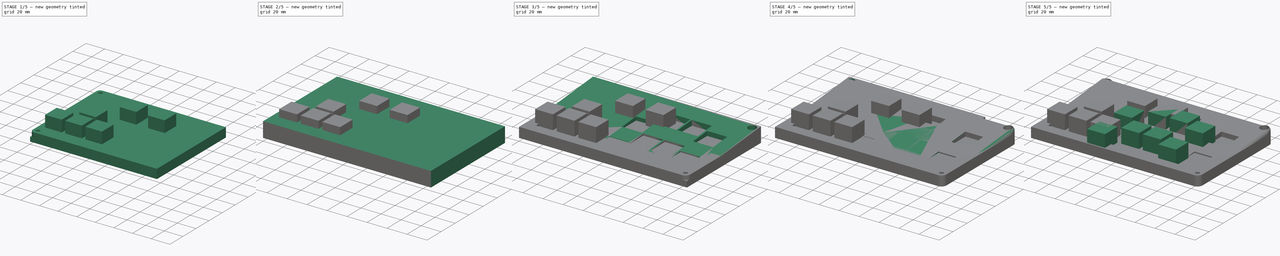
[diagram: build sequence overview — one tinted view per stage of 5, left to right]
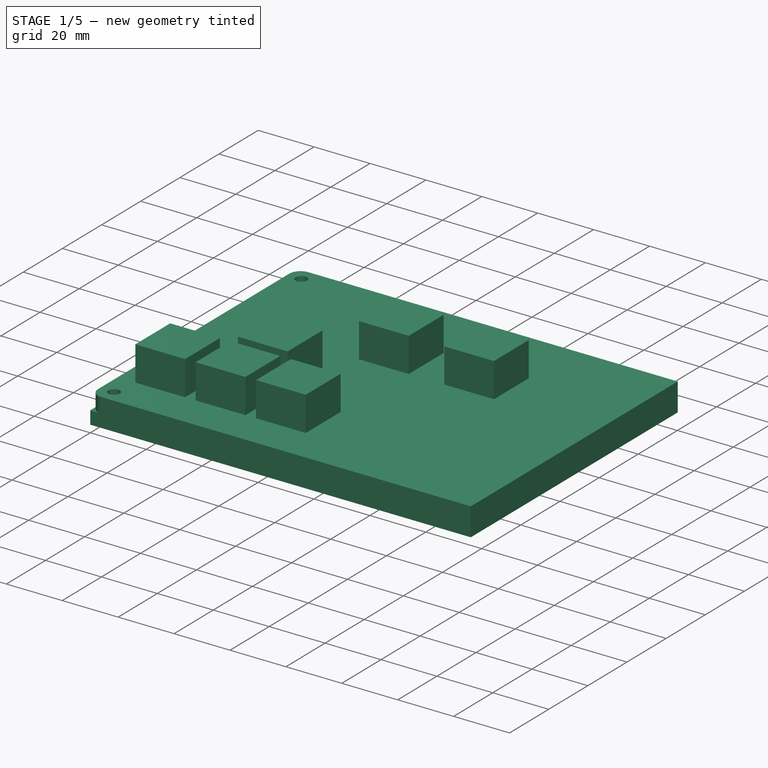
[diagram: stage 1 of 5 — iso view after this stage's code; geometry added in this stage tinted green]
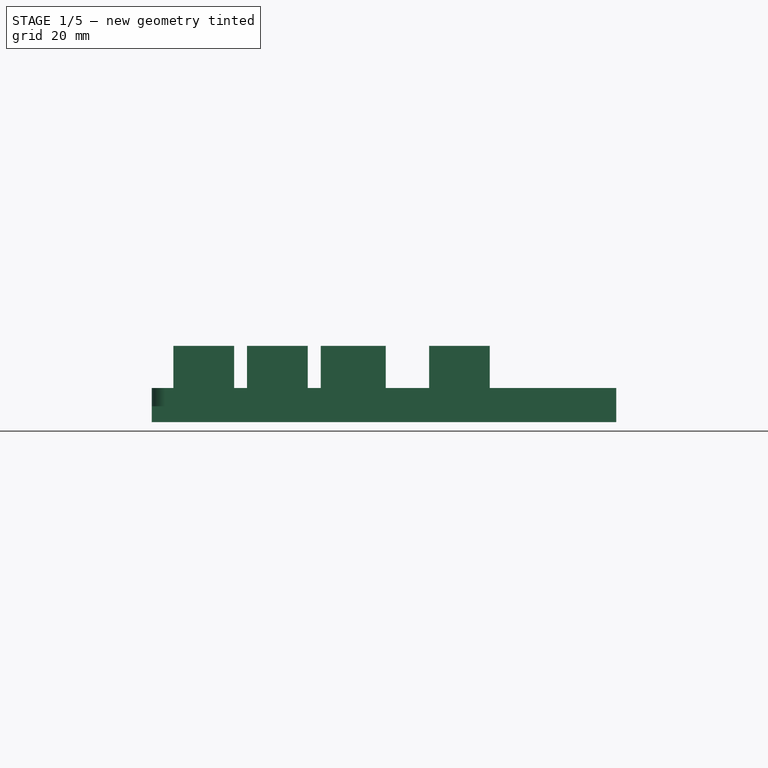
[diagram: stage 1 of 5 — front view after this stage's code; geometry added in this stage tinted green]
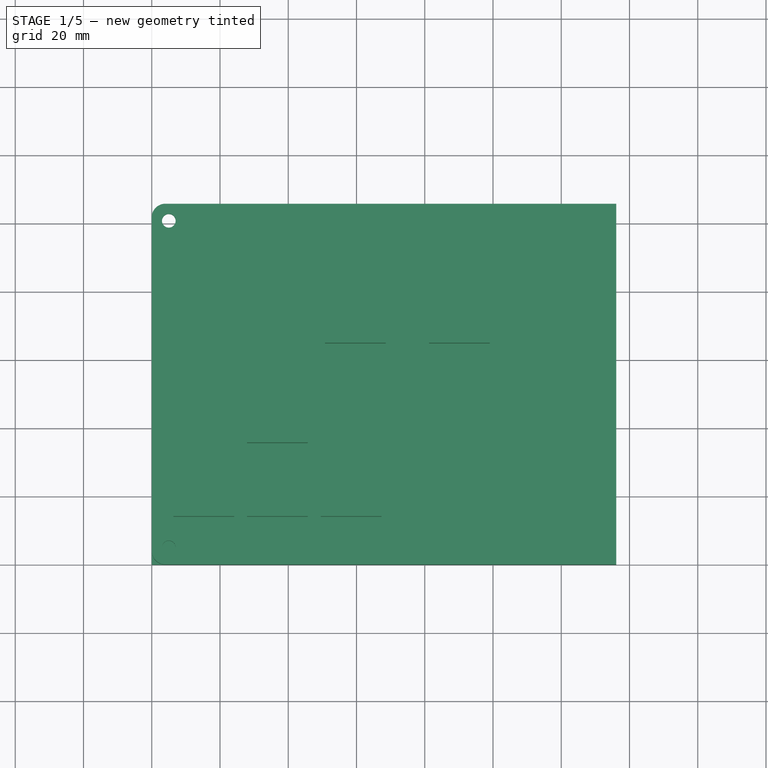
[diagram: stage 1 of 5 — top view after this stage's code; geometry added in this stage tinted green]
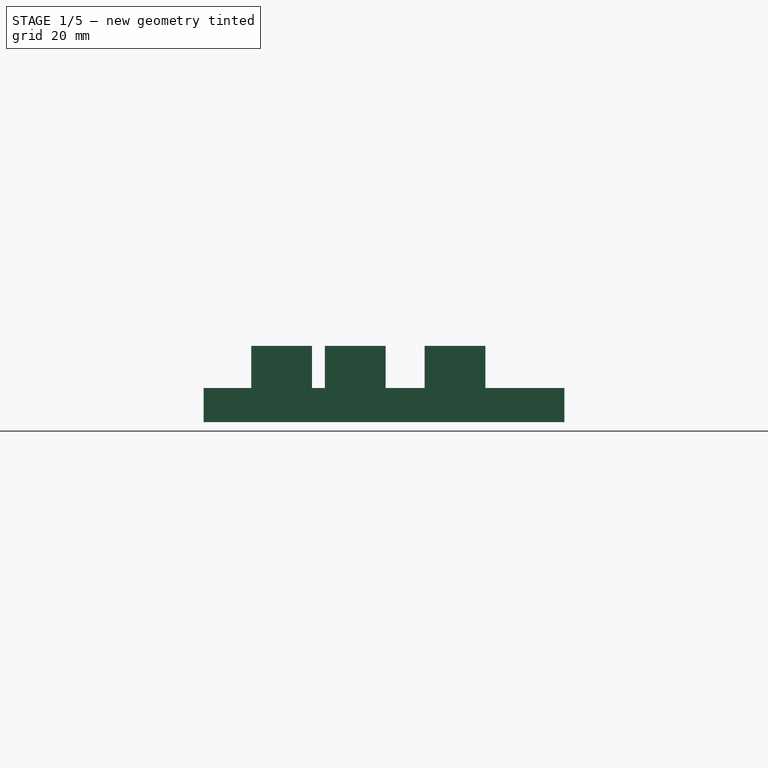
[diagram: stage 1 of 5 — right view after this stage's code; geometry added in this stage tinted green]
FCSTD DOCUMENT  (FreeCAD 0.19RUnknown)
Label: Fight Key Enclosure
License: All rights reserved
LicenseURL: http://en.wikipedia.org/wiki/All_rights_reserved
objects: Sketcher::SketchObject×27, PartDesign::Pocket×17, PartDesign::Pad×9, PartDesign::Body×6, PartDesign::Fillet×6, Spreadsheet::Sheet×1
note: 97 computed .brp shape members not serialized (recipe doc carries the construction recipe); baked Part::Feature solids carry a one-line shape summary decoded from their .brp

FEATURE [Spreadsheet::Sheet] Spreadsheet  label="Params"
  cells = A1(cap_width)=17.8; A2(cap_height)=17.8; A3(cap_max_depth)=17.68; A4(cap_arrow_center_dist)=21.59; A5(cap_arr_sel_x_dist)=22.86; A6(cap_arr_sel_y_dist)=29.21; A7(board_left_width)=111.125; A8(board_right_width)=142.875; A9(board_height)=85.72499999999999; A10(cap_btm_to_arr_ctr_x)=15.24; A11(cap_btm_to_arr_ctr_y)=22.86; A12(board_depth)==2.8 - 1.6 + 3.46 - 1.6 + 1.6; A13(cap_sel_start_ctr_dist)=30.48; A14(enc_thick)=10; A15(middle_dist)=30; A16(pico_access_height)=10; A17(pico_access_width)=8; A18(pico_width)=20.96; A19(pico_length)=52.1; A20(pico_thick)=4; A21(cap_btm_kick_ctr_y)=10.16; A22(cap_btm_kick_ctr_x)=64.13500000000001; A23(cap_kick_punch_dist)=38.375; A24(cap_light_ctr_x)=21.59; A25(cap_light_ctr_y)=17.78; A26(cap_light_end_y)=8.890000000000001; A27(pico_offset_x)=17.575; A28(pico_offset_y)=33.055; A29(cutout_thick)=20; A30(slope_angle)=5
FEATURE [Sketcher::SketchObject] Sketch001  label="Left Board Sk"
  FullyConstrained = true
  MapMode = 5
  Support = -> [XY_Plane]
  expr: Constraints[10] = <<Params>>.board_height
  expr: Constraints[9] = <<Params>>.board_left_width
  sketch-geometry (4):
    g0: LineSegment StartX=0 StartY=0 StartZ=0 EndX=111.125 EndY=0 EndZ=0
    g1: LineSegment StartX=111.125 StartY=0 StartZ=0 EndX=111.125 EndY=85.725 EndZ=0
    g2: LineSegment StartX=111.125 StartY=85.725 StartZ=0 EndX=0 EndY=85.725 EndZ=0
    g3: LineSegment StartX=0 StartY=85.725 StartZ=0 EndX=0 EndY=0 EndZ=0
  constraints (11):
    c: Coincident(g0,g1)
    c: Coincident(g1,g2)
    c: Coincident(g2,g3)
    c: Coincident(g3,g0)
    c: Horizontal(g0)
    c: Horizontal(g2)
    c: Vertical(g1)
    c: Vertical(g3)
    c: Coincident(g0,g-1)
    c: DistanceX(g2,g2) = 111.125
    c: DistanceY(g1,g1) = 85.725
FEATURE [PartDesign::Pad] Pad  label="Left Board Pad"
  Direction = (1,1,1)
  Length = 4.66
  Length2 = 100
  Profile = -> Sketch001
  Type = 0
  expr: Length = <<Params>>.board_depth
FEATURE [Sketcher::SketchObject] Sketch003  label="Left Enc Base Sk"
  FullyConstrained = true
  MapMode = 5
  Support = -> [XY_Plane002]
  expr: Constraints[10] = 2 * <<Params>>.enc_thick + <<Params>>.board_height
  expr: Constraints[9] = <<Params>>.enc_thick + <<Params>>.board_left_width + <<Params>>.middle_dist / 2
  sketch-geometry (4):
    g0: LineSegment StartX=0 StartY=0 StartZ=0 EndX=136.125 EndY=0 EndZ=0
    g1: LineSegment StartX=136.125 StartY=0 StartZ=0 EndX=136.125 EndY=105.725 EndZ=0
    g2: LineSegment StartX=136.125 StartY=105.725 StartZ=0 EndX=0 EndY=105.725 EndZ=0
    g3: LineSegment StartX=0 StartY=105.725 StartZ=0 EndX=0 EndY=0 EndZ=0
  constraints (11):
    c: Coincident(g0,g1)
    c: Coincident(g1,g2)
    c: Coincident(g2,g3)
    c: Coincident(g3,g0)
    c: Horizontal(g0)
    c: Horizontal(g2)
    c: Vertical(g1)
    c: Vertical(g3)
    c: Coincident(g0,g-1)
    c: DistanceX(g2,g2) = 136.125
    c: DistanceY(g3,g3) = 105.725
FEATURE [PartDesign::Pad] Pad003  label="Left Enc Base Pad"
  Direction = (1,1,1)
  Length = 10
  Length2 = 100
  Profile = -> Sketch003
  Type = 0
  expr: Length = <<Params>>.enc_thick
FEATURE [PartDesign::Body] Body001  label="Right PCB Ref"
  Group = -> [Sketch002,Pad002,Sketch005,Pad005,Sketch006,Pad006]
  Origin = -> Origin001
  Placement = pos=(15,10,8) rot=(0,0,1;0rad)
  Tip = -> Pad006
  expr: .Placement.Base.y = <<Params>>.enc_thick
  expr: .Placement.Base.z = <<Params>>.enc_thick - 2
  expr: .Placement.Base.x = <<Params>>.middle_dist / 2
FEATURE [Sketcher::SketchObject] Sketch008  label="Left Enc Pocket Sk"
  FullyConstrained = true
  MapMode = 5
  Placement = pos=(0,0,0) rot=(1,0,0;3.14159rad)
  Support = -> [Pad003]
  expr: Constraints[4] = <<Params>>.board_height + <<Params>>.enc_thick * 2 - 10
  sketch-geometry (2):
    g0: Circle CenterX=5 CenterY=-5 CenterZ=0 NormalX=0 NormalY=0 NormalZ=1 AngleXU=0 Radius=3
    g1: Circle CenterX=5 CenterY=-100.725 CenterZ=0 NormalX=0 NormalY=0 NormalZ=1 AngleXU=0 Radius=3
  constraints (6):
    c: Radius(g0) = 3
    c: Radius(g1) = 3
    c: DistanceX(g-1,g0) = 5
    c: DistanceX(g-1,g1) = 5
    c: DistanceY(g1,g0) = 95.725
    c: DistanceY(g0,g-1) = 5
FEATURE [PartDesign::Pocket] Pocket  label="Left Enc Pocket"
  BaseFeature = -> Pad003
  Length = 5
  Length2 = 100
  Profile = -> Sketch008
  Type = 0
  expr: Length = <<Params>>.enc_thick / 2
FEATURE [Sketcher::SketchObject] Sketch007  label="Left Enc Hole Sk"
  FullyConstrained = true
  MapMode = 5
  Placement = pos=(0,0,5) rot=(1,0,0;3.14159rad)
  Support = -> [Pocket]
  expr: Constraints[3] = <<Params>>.board_height + <<Params>>.enc_thick * 2 - 10
  sketch-geometry (2):
    g0: Circle CenterX=5 CenterY=-5 CenterZ=0 NormalX=0 NormalY=0 NormalZ=1 AngleXU=0 Radius=2
    g1: Circle CenterX=5 CenterY=-100.725 CenterZ=0 NormalX=0 NormalY=0 NormalZ=1 AngleXU=0 Radius=2
  constraints (6):
    c: Radius(g0) = 2
    c: DistanceX(g-1,g0) = 5
    c: DistanceY(g0,g-1) = 5
    c: DistanceY(g1,g0) = 95.725
    c: Radius(g1) = 2
    c: DistanceX(g-1,g1) = 5
FEATURE [PartDesign::Pocket] Pocket001  label="Left Enc Hole"
  BaseFeature = -> Pocket
  Length = 10
  Length2 = 100
  Profile = -> Sketch007
  Type = 0
  expr: Length = <<Params>>.enc_thick
FEATURE [Sketcher::SketchObject] Sketch025  label="Pico Access Sk"
  FullyConstrained = true
  MapMode = 5
  Placement = pos=(0,105.725,0) rot=(0,0.707107,0.707107;3.14159rad)
  Support = -> [Pocket012]
  expr: Constraints[8] = <<Params>>.pico_access_width
  expr: Constraints[9] = <<Params>>.pico_access_height
  expr: Constraints[10] = <<Params>>.pico_offset_x + (<<Params>>.pico_width - <<Params>>.pico_access_width) / 2 + <<Params>>.middle_dist / 2
  sketch-geometry (4):
    g0: LineSegment StartX=-39.055 StartY=0 StartZ=0 EndX=-47.055 EndY=0 EndZ=0
    g1: LineSegment StartX=-47.055 StartY=0 StartZ=0 EndX=-47.055 EndY=10 EndZ=0
    g2: LineSegment StartX=-47.055 StartY=10 StartZ=0 EndX=-39.055 EndY=10 EndZ=0
    g3: LineSegment StartX=-39.055 StartY=10 StartZ=0 EndX=-39.055 EndY=0 EndZ=0
  constraints (12):
    c: Coincident(g0,g1)
    c: Coincident(g1,g2)
    c: Coincident(g2,g3)
    c: Coincident(g3,g0)
    c: Horizontal(g0)
    c: Horizontal(g2)
    c: Vertical(g1)
    c: Vertical(g3)
    c: DistanceX(g2,g2) = 8
    c: DistanceY(g1,g1) = 10
    c: DistanceX(g2,g-1) = 39.055
    c: DistanceY(g-1,g0) = 0
FEATURE [PartDesign::Fillet] Fillet014
  Base = -> Pocket001 [Edge5,Edge1]
  BaseFeature = -> Pocket001
  Radius = 4
  SupportTransform = false
FEATURE [PartDesign::Body] Body002  label="Left Enc Base"
  Group = -> [Sketch003,Pad003,Sketch007,Sketch008,Pocket,Pocket001,Fillet014,Sketch029,Pocket023]
  Origin = -> Origin002
  Placement = pos=(-136.125,0,0) rot=(0,0,1;0rad)
  Tip = -> Pocket023
  expr: .Placement.Base.x = -<<Params>>.board_left_width - <<Params>>.enc_thick - <<Params>>.middle_dist / 2
FEATURE [PartDesign::Pad] Pad014  label="Left Caps pad"
  BaseFeature = -> Pad
  Direction = (1,1,1)
  Length = 17.68
  Length2 = 100
  Profile = -> Sketch
  Type = 0
  expr: Length = <<Params>>.cap_max_depth
FEATURE [PartDesign::Body] Body  label="Left PCB Ref"
  Group = -> [Sketch,Sketch001,Pad,Pad014]
  Origin = -> Origin
  Placement = pos=(-126.125,10,8) rot=(0,0,1;0rad)
  Tip = -> Pad014
  expr: .Placement.Base.y = <<Params>>.enc_thick
  expr: .Placement.Base.z = <<Params>>.enc_thick - 2
  expr: .Placement.Base.x = -<<Params>>.board_left_width - <<Params>>.middle_dist / 2
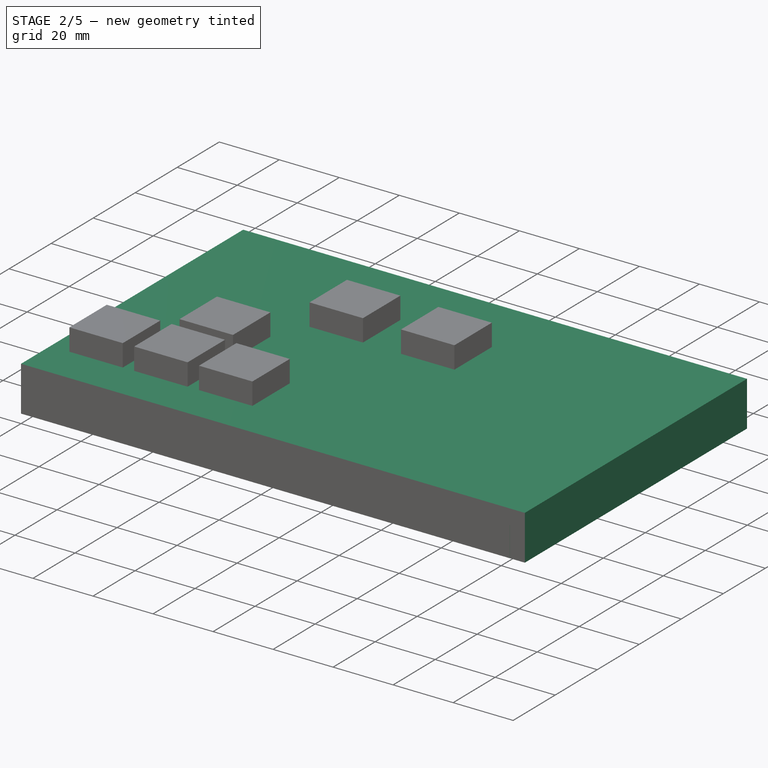
[diagram: stage 2 of 5 — iso view after this stage's code; geometry added in this stage tinted green]
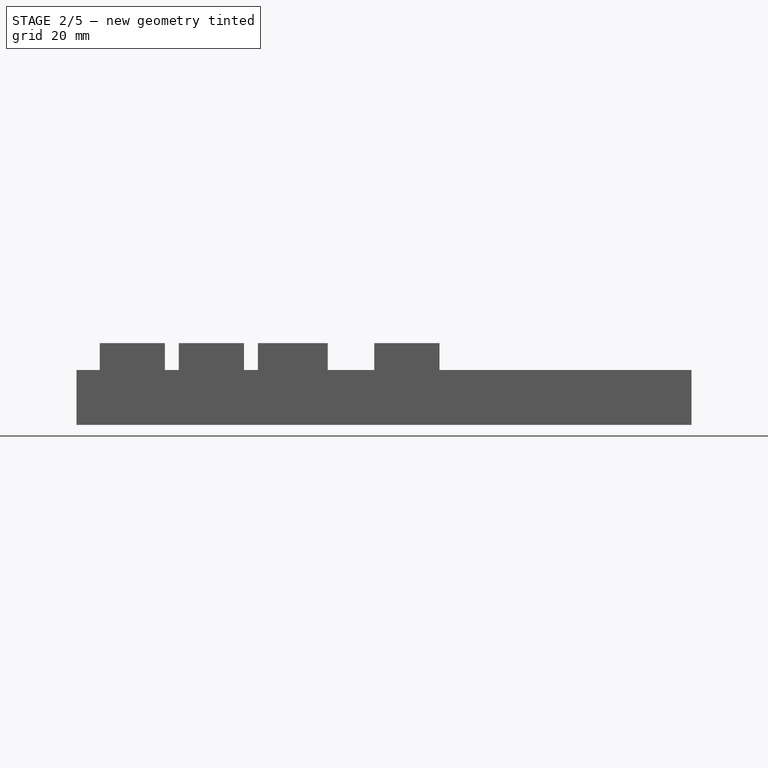
[diagram: stage 2 of 5 — front view after this stage's code; geometry added in this stage tinted green]
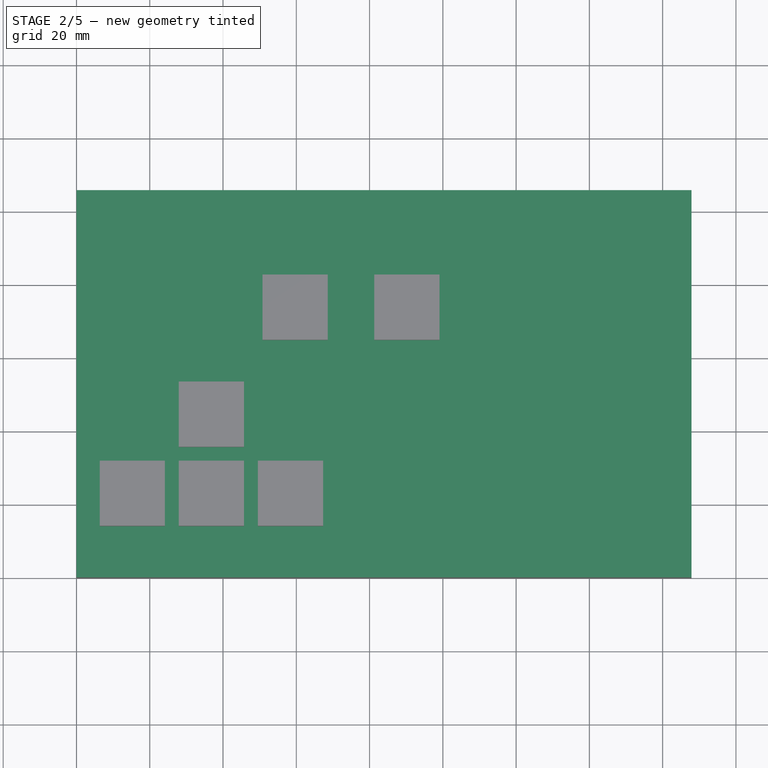
[diagram: stage 2 of 5 — top view after this stage's code; geometry added in this stage tinted green]
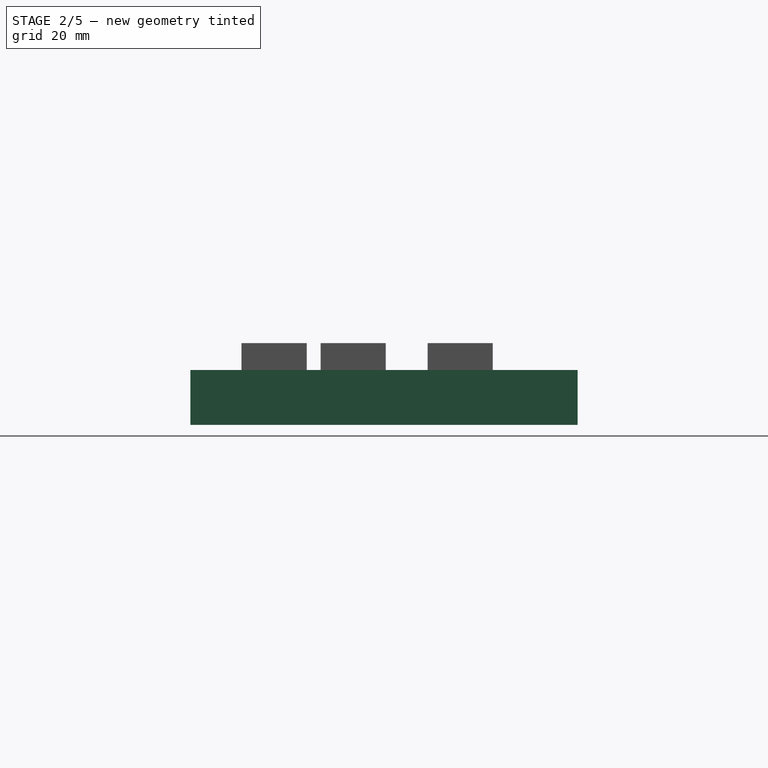
[diagram: stage 2 of 5 — right view after this stage's code; geometry added in this stage tinted green]
FEATURE [Sketcher::SketchObject] Sketch004  label="Right Enc Base Sk"
  FullyConstrained = true
  MapMode = 5
  Support = -> [XY_Plane003]
  expr: Constraints[10] = 2 * <<Params>>.enc_thick + <<Params>>.board_height
  expr: Constraints[9] = <<Params>>.middle_dist / 2 + <<Params>>.board_right_width + <<Params>>.enc_thick
  sketch-geometry (4):
    g0: LineSegment StartX=0 StartY=0 StartZ=0 EndX=167.875 EndY=0 EndZ=0
    g1: LineSegment StartX=167.875 StartY=0 StartZ=0 EndX=167.875 EndY=105.725 EndZ=0
    g2: LineSegment StartX=167.875 StartY=105.725 StartZ=0 EndX=0 EndY=105.725 EndZ=0
    g3: LineSegment StartX=0 StartY=105.725 StartZ=0 EndX=0 EndY=0 EndZ=0
  constraints (11):
    c: Coincident(g0,g1)
    c: Coincident(g1,g2)
    c: Coincident(g2,g3)
    c: Coincident(g3,g0)
    c: Horizontal(g0)
    c: Horizontal(g2)
    c: Vertical(g1)
    c: Vertical(g3)
    c: Coincident(g0,g-1)
    c: DistanceX(g2,g2) = 167.875
    c: DistanceY(g1,g1) = 105.725
FEATURE [PartDesign::Pad] Pad004  label="Right Enc Base Pad"
  Direction = (1,1,1)
  Length = 10
  Length2 = 100
  Profile = -> Sketch004
  Type = 0
  expr: Length = <<Params>>.enc_thick
FEATURE [Sketcher::SketchObject] Sketch009  label="Right Enc Pocket Sk"
  FullyConstrained = true
  MapMode = 5
  Placement = pos=(0,0,0) rot=(1,0,0;3.14159rad)
  Support = -> [Pad004]
  expr: Constraints[2] = <<Params>>.board_right_width + <<Params>>.enc_thick + <<Params>>.middle_dist / 2 - 5
  expr: Constraints[5] = <<Params>>.board_height + 2 * <<Params>>.enc_thick - 10
  sketch-geometry (2):
    g0: Circle CenterX=162.875 CenterY=-5 CenterZ=0 NormalX=0 NormalY=0 NormalZ=1 AngleXU=0 Radius=4
    g1: Circle CenterX=162.875 CenterY=-100.725 CenterZ=0 NormalX=0 NormalY=0 NormalZ=1 AngleXU=0 Radius=4
  constraints (6):
    c: Radius(g0) = 4
    c: Radius(g1) = 4
    c: DistanceX(g-1,g0) = 162.875
    c: DistanceX(g1,g0) = 0
    c: DistanceY(g0,g-1) = 5
    c: DistanceY(g1,g0) = 95.725
FEATURE [PartDesign::Pocket] Pocket002  label="Right Enc Pocket"
  BaseFeature = -> Pad004
  Length = 5
  Length2 = 100
  Profile = -> Sketch009
  Type = 0
  expr: Length = <<Params>>.enc_thick / 2
FEATURE [Sketcher::SketchObject] Sketch010  label="Right Enc Hole Sk"
  FullyConstrained = true
  MapMode = 5
  Placement = pos=(0,0,5) rot=(1,0,0;3.14159rad)
  Support = -> [Pocket002]
  expr: Constraints[5] = <<Params>>.board_height + 2 * <<Params>>.enc_thick - 10
  expr: Constraints[2] = <<Params>>.board_right_width + <<Params>>.enc_thick + <<Params>>.middle_dist / 2 - 5
  sketch-geometry (2):
    g0: Circle CenterX=162.875 CenterY=-5 CenterZ=0 NormalX=0 NormalY=0 NormalZ=1 AngleXU=0 Radius=2
    g1: Circle CenterX=162.875 CenterY=-100.725 CenterZ=0 NormalX=0 NormalY=0 NormalZ=1 AngleXU=0 Radius=2
  constraints (6):
    c: Radius(g0) = 2
    c: Radius(g1) = 2
    c: DistanceX(g-1,g0) = 162.875
    c: DistanceX(g1,g0) = 0
    c: DistanceY(g0,g-1) = 5
    c: DistanceY(g1,g0) = 95.725
FEATURE [PartDesign::Pocket] Pocket003  label="Right Enc Hole"
  BaseFeature = -> Pocket002
  Length = 10
  Length2 = 100
  Profile = -> Sketch010
  Type = 0
  expr: Length = <<Params>>.enc_thick
FEATURE [Sketcher::SketchObject] Sketch016  label="Left Enc Top Cutout Sk"
  FullyConstrained = true
  MapMode = 5
  Placement = pos=(0,-0.499261,5.70658) rot=(1,0,0;0.087266rad)
  Support = -> [Pocket006]
  expr: Constraints[2] = <<Params>>.board_height + <<Params>>.enc_thick * 2 - 10
  sketch-geometry (2):
    g0: Circle CenterX=5 CenterY=5.5 CenterZ=0 NormalX=0 NormalY=0 NormalZ=1 AngleXU=0 Radius=4
    g1: Circle CenterX=5 CenterY=101.225 CenterZ=0 NormalX=0 NormalY=0 NormalZ=1 AngleXU=0 Radius=4
  constraints (6):
    c: Radius(g0) = 4
    c: DistanceX(g-1,g0) = 5
    c: DistanceY(g0,g1) = 95.725
    c: Radius(g1) = 4
    c: DistanceX(g0,g1) = 0
    c: DistanceY(g-1,g0) = 5.5
FEATURE [Sketcher::SketchObject] Sketch020  label="Right Enc Top Sk"
  FullyConstrained = true
  MapMode = 5
  Support = -> [XY_Plane005]
  expr: Constraints[9] = <<Params>>.middle_dist / 2 + <<Params>>.board_right_width + <<Params>>.enc_thick
  expr: Constraints[10] = 2 * <<Params>>.enc_thick + <<Params>>.board_height
  sketch-geometry (4):
    g0: LineSegment StartX=0 StartY=0 StartZ=0 EndX=167.875 EndY=0 EndZ=0
    g1: LineSegment StartX=167.875 StartY=0 StartZ=0 EndX=167.875 EndY=105.725 EndZ=0
    g2: LineSegment StartX=167.875 StartY=105.725 StartZ=0 EndX=0 EndY=105.725 EndZ=0
    g3: LineSegment StartX=0 StartY=105.725 StartZ=0 EndX=0 EndY=0 EndZ=0
  constraints (11):
    c: Coincident(g0,g1)
    c: Coincident(g1,g2)
    c: Coincident(g2,g3)
    c: Coincident(g3,g0)
    c: Horizontal(g0)
    c: Horizontal(g2)
    c: Vertical(g1)
    c: Vertical(g3)
    c: Coincident(g0,g-1)
    c: DistanceX(g2,g2) = 167.875
    c: DistanceY(g1,g1) = 105.725
FEATURE [PartDesign::Pad] Pad010  label="Right Enc Top Pad"
  Direction = (1,1,1)
  Length = 15
  Length2 = 100
  Profile = -> Sketch020
  Type = 0
  expr: Length = <<Params>>.enc_thick * 1.5
FEATURE [PartDesign::Fillet] Fillet016
  Base = -> Pocket003 [Edge2,Edge8]
  BaseFeature = -> Pocket003
  Radius = 5
  SupportTransform = false
FEATURE [Sketcher::SketchObject] Sketch027
  FullyConstrained = false
  MapMode = 5
  Placement = pos=(0,0,5) rot=(1,0,0;3.14159rad)
  Support = -> [Fillet019]
  sketch-geometry (4):
    g0: LineSegment StartX=25.5171 StartY=-68.7306 StartZ=0 EndX=59.6433 EndY=-68.7306 EndZ=0
    g1: LineSegment StartX=59.6433 StartY=-68.7306 StartZ=0 EndX=59.6433 EndY=-100.709 EndZ=0
    g2: LineSegment StartX=59.6433 StartY=-100.709 StartZ=0 EndX=25.5171 EndY=-100.709 EndZ=0
    g3: LineSegment StartX=25.5171 StartY=-100.709 StartZ=0 EndX=25.5171 EndY=-68.7306 EndZ=0
  constraints (8):
    c: Coincident(g0,g1)
    c: Coincident(g1,g2)
    c: Coincident(g2,g3)
    c: Coincident(g3,g0)
    c: Horizontal(g0)
    c: Horizontal(g2)
    c: Vertical(g1)
    c: Vertical(g3)
FEATURE [PartDesign::Body] Body005  label="Right Enc Top"
  Group = -> [Sketch020,Pad010,Sketch021,Pocket010,Sketch022,Pocket011,Sketch023,Pocket012,Sketch024,Sketch025,Sketch026,Pocket019,Pocket020,Pocket021,Fillet018,Fillet019,Sketch027]
  Origin = -> Origin005
  Placement = pos=(0,0,10) rot=(0,0,1;0rad)
  Tip = -> Fillet019
  expr: .Placement.Base.z = <<Params>>.enc_thick
FEATURE [Sketcher::SketchObject] Sketch028  label="Right Abcess Sk"
  FullyConstrained = true
  MapMode = 5
  Placement = pos=(0,0,10) rot=(0,0,1;0rad)
  Support = -> [Fillet016]
  expr: Constraints[8] = <<Params>>.board_height
  expr: Constraints[9] = <<Params>>.enc_thick
  expr: Constraints[10] = <<Params>>.board_right_width + <<Params>>.middle_dist / 2
  sketch-geometry (4):
    g0: LineSegment StartX=0 StartY=95.725 StartZ=0 EndX=157.875 EndY=95.725 EndZ=0
    g1: LineSegment StartX=157.875 StartY=95.725 StartZ=0 EndX=157.875 EndY=10 EndZ=0
    g2: LineSegment StartX=157.875 StartY=10 StartZ=0 EndX=0 EndY=10 EndZ=0
    g3: LineSegment StartX=0 StartY=10 StartZ=0 EndX=0 EndY=95.725 EndZ=0
  constraints (12):
    c: Coincident(g0,g1)
    c: Coincident(g1,g2)
    c: Coincident(g2,g3)
    c: Coincident(g3,g0)
    c: Horizontal(g0)
    c: Horizontal(g2)
    c: Vertical(g1)
    c: Vertical(g3)
    c: DistanceY(g3,g3) = 85.725
    c: DistanceY(g-1,g2) = 10
    c: DistanceX(g0,g0) = 157.875
    c: DistanceX(g-1,g2) = 0
FEATURE [PartDesign::Pocket] Pocket022  label="Right Abcess"
  BaseFeature = -> Fillet016
  Length = 2
  Length2 = 100
  Profile = -> Sketch028
  Type = 0
FEATURE [PartDesign::Body] Body003  label="Right Enc Base"
  Group = -> [Sketch004,Pad004,Sketch009,Pocket002,Sketch010,Pocket003,Fillet016,Sketch028,Pocket022]
  Origin = -> Origin003
  Tip = -> Pocket022
FEATURE [Sketcher::SketchObject] Sketch029  label="Left Abcess Sk"
  FullyConstrained = true
  MapMode = 5
  Placement = pos=(0,0,10) rot=(0,0,1;0rad)
  Support = -> [Fillet014]
  expr: Constraints[8] = <<Params>>.enc_thick
  expr: Constraints[9] = <<Params>>.board_left_width + <<Params>>.middle_dist / 2
  expr: Constraints[10] = <<Params>>.board_height
  expr: Constraints[11] = <<Params>>.enc_thick
  sketch-geometry (4):
    g0: LineSegment StartX=10 StartY=95.725 StartZ=0 EndX=136.125 EndY=95.725 EndZ=0
    g1: LineSegment StartX=136.125 StartY=95.725 StartZ=0 EndX=136.125 EndY=10 EndZ=0
    g2: LineSegment StartX=136.125 StartY=10 StartZ=0 EndX=10 EndY=10 EndZ=0
    g3: LineSegment StartX=10 StartY=10 StartZ=0 EndX=10 EndY=95.725 EndZ=0
  constraints (12):
    c: Coincident(g0,g1)
    c: Coincident(g1,g2)
    c: Coincident(g2,g3)
    c: Coincident(g3,g0)
    c: Horizontal(g0)
    c: Horizontal(g2)
    c: Vertical(g1)
    c: Vertical(g3)
    c: DistanceX(g-1,g2) = 10
    c: DistanceX(g2,g2) = 126.125
    c: DistanceY(g3,g3) = 85.725
    c: DistanceY(g-1,g2) = 10
FEATURE [PartDesign::Pocket] Pocket023  label="Left Abcess"
  BaseFeature = -> Fillet014
  Length = 2
  Length2 = 100
  Profile = -> Sketch029
  Type = 0
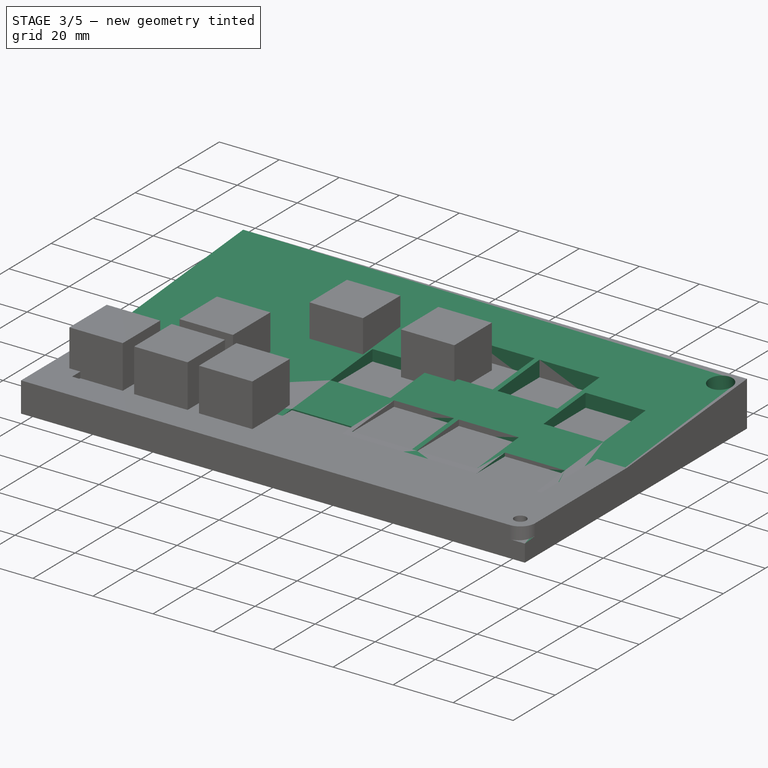
[diagram: stage 3 of 5 — iso view after this stage's code; geometry added in this stage tinted green]
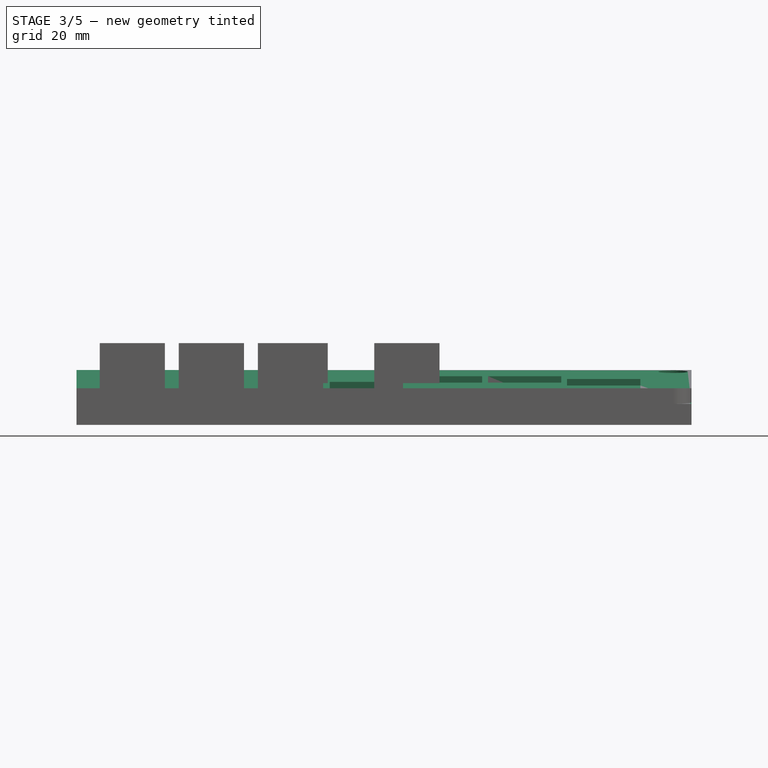
[diagram: stage 3 of 5 — front view after this stage's code; geometry added in this stage tinted green]
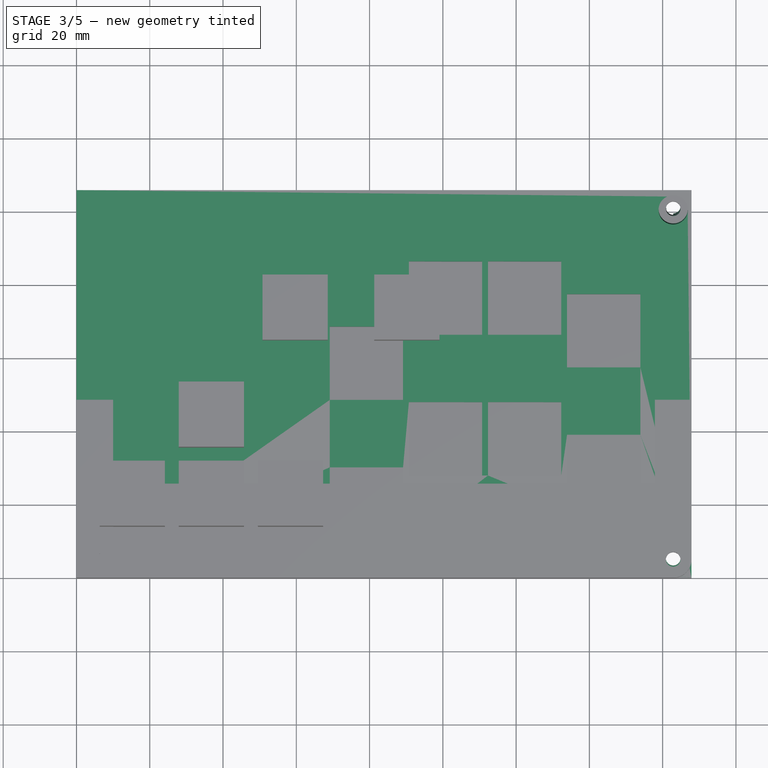
[diagram: stage 3 of 5 — top view after this stage's code; geometry added in this stage tinted green]
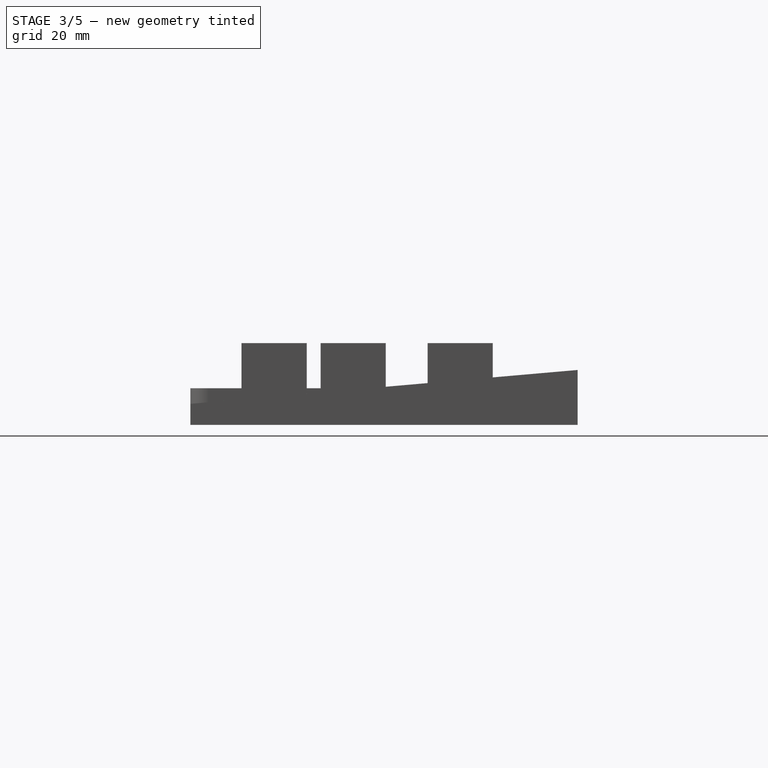
[diagram: stage 3 of 5 — right view after this stage's code; geometry added in this stage tinted green]
FEATURE [Sketcher::SketchObject] Sketch021  label="Right Caps Cutout Sk"
  FullyConstrained = true
  MapMode = 5
  Placement = pos=(0,0,15) rot=(0,0,1;0rad)
  Support = -> [Pad010]
  expr: Constraints[64] = <<Params>>.cutout_thick
  expr: Constraints[65] = <<Params>>.cutout_thick
  expr: Constraints[66] = <<Params>>.cutout_thick
  expr: Constraints[67] = <<Params>>.cutout_thick
  expr: Constraints[68] = <<Params>>.cutout_thick
  expr: Constraints[82] = <<Params>>.cap_btm_kick_ctr_x - <<Params>>.cutout_thick / 2 + <<Params>>.middle_dist / 2
  expr: Constraints[71] = <<Params>>.cutout_thick
  expr: Constraints[69] = <<Params>>.cutout_thick
  expr: Constraints[87] = <<Params>>.cap_light_ctr_x - <<Params>>.cutout_thick
  expr: Constraints[70] = <<Params>>.cutout_thick
  expr: Constraints[75] = <<Params>>.cutout_thick
  expr: Constraints[72] = <<Params>>.cutout_thick
  expr: Constraints[91] = <<Params>>.cap_light_ctr_y - <<Params>>.cutout_thick
  expr: Constraints[92] = <<Params>>.cap_kick_punch_dist - <<Params>>.cutout_thick
  expr: Constraints[77] = <<Params>>.cutout_thick
  expr: Constraints[95] = <<Params>>.cap_light_ctr_x - <<Params>>.cutout_thick
  expr: Constraints[74] = <<Params>>.cutout_thick
  expr: Constraints[76] = <<Params>>.cutout_thick
  expr: Constraints[78] = <<Params>>.cutout_thick
  expr: Constraints[83] = <<Params>>.cap_kick_punch_dist - <<Params>>.cutout_thick
  expr: Constraints[79] = <<Params>>.cutout_thick
  expr: Constraints[93] = <<Params>>.cap_light_end_y - <<Params>>.cutout_thick
  expr: Constraints[80] = <<Params>>.cap_btm_kick_ctr_y - <<Params>>.cutout_thick / 2 + <<Params>>.enc_thick
  expr: Constraints[88] = <<Params>>.cap_kick_punch_dist - <<Params>>.cutout_thick
  expr: Constraints[73] = <<Params>>.cutout_thick
  expr: Constraints[94] = <<Params>>.cap_light_ctr_x - <<Params>>.cutout_thick
  sketch-geometry (32):
    g0: LineSegment StartX=69.135 StartY=30.16 StartZ=0 EndX=89.135 EndY=30.16 EndZ=0
    g1: LineSegment StartX=89.135 StartY=30.16 StartZ=0 EndX=89.135 EndY=10.16 EndZ=0
    g2: LineSegment StartX=89.135 StartY=10.16 StartZ=0 EndX=69.135 EndY=10.16 EndZ=0
    g3: LineSegment StartX=69.135 StartY=10.16 StartZ=0 EndX=69.135 EndY=30.16 EndZ=0
    g4: LineSegment StartX=90.725 StartY=47.94 StartZ=0 EndX=110.725 EndY=47.94 EndZ=0
    g5: LineSegment StartX=110.725 StartY=47.94 StartZ=0 EndX=110.725 EndY=27.94 EndZ=0
    g6: LineSegment StartX=110.725 StartY=27.94 StartZ=0 EndX=90.725 EndY=27.94 EndZ=0
    g7: LineSegment StartX=90.725 StartY=27.94 StartZ=0 EndX=90.725 EndY=47.94 EndZ=0
    g8: LineSegment StartX=112.315 StartY=47.94 StartZ=0 EndX=132.315 EndY=47.94 EndZ=0
    g9: LineSegment StartX=132.315 StartY=47.94 StartZ=0 EndX=132.315 EndY=27.94 EndZ=0
    g10: LineSegment StartX=132.315 StartY=27.94 StartZ=0 EndX=112.315 EndY=27.94 EndZ=0
    g11: LineSegment StartX=112.315 StartY=27.94 StartZ=0 EndX=112.315 EndY=47.94 EndZ=0
    g12: LineSegment StartX=133.905 StartY=39.05 StartZ=0 EndX=153.905 EndY=39.05 EndZ=0
    g13: LineSegment StartX=153.905 StartY=39.05 StartZ=0 EndX=153.905 EndY=19.05 EndZ=0
    g14: LineSegment StartX=153.905 StartY=19.05 StartZ=0 EndX=133.905 EndY=19.05 EndZ=0
    g15: LineSegment StartX=133.905 StartY=19.05 StartZ=0 EndX=133.905 EndY=39.05 EndZ=0
    g16: LineSegment StartX=133.905 StartY=77.425 StartZ=0 EndX=153.905 EndY=77.425 EndZ=0
    g17: LineSegment StartX=153.905 StartY=77.425 StartZ=0 EndX=153.905 EndY=57.425 EndZ=0
    g18: LineSegment StartX=153.905 StartY=57.425 StartZ=0 EndX=133.905 EndY=57.425 EndZ=0
    g19: LineSegment StartX=133.905 StartY=57.425 StartZ=0 EndX=133.905 EndY=77.425 EndZ=0
    g20: LineSegment StartX=112.315 StartY=86.315 StartZ=0 EndX=132.315 EndY=86.315 EndZ=0
    g21: LineSegment StartX=132.315 StartY=86.315 StartZ=0 EndX=132.315 EndY=66.315 EndZ=0
    g22: LineSegment StartX=132.315 StartY=66.315 StartZ=0 EndX=112.315 EndY=66.315 EndZ=0
    g23: LineSegment StartX=112.315 StartY=66.315 StartZ=0 EndX=112.315 EndY=86.315 EndZ=0
    g24: LineSegment StartX=90.725 StartY=86.315 StartZ=0 EndX=110.725 EndY=86.315 EndZ=0
    g25: LineSegment StartX=110.725 StartY=86.315 StartZ=0 EndX=110.725 EndY=66.315 EndZ=0
    g26: LineSegment StartX=110.725 StartY=66.315 StartZ=0 EndX=90.725 EndY=66.315 EndZ=0
    g27: LineSegment StartX=90.725 StartY=66.315 StartZ=0 EndX=90.725 EndY=86.315 EndZ=0
    g28: LineSegment StartX=69.135 StartY=68.535 StartZ=0 EndX=89.135 EndY=68.535 EndZ=0
    g29: LineSegment StartX=89.135 StartY=68.535 StartZ=0 EndX=89.135 EndY=48.535 EndZ=0
    g30: LineSegment StartX=89.135 StartY=48.535 StartZ=0 EndX=69.135 EndY=48.535 EndZ=0
    g31: LineSegment StartX=69.135 StartY=48.535 StartZ=0 EndX=69.135 EndY=68.535 EndZ=0
  constraints (96):
    c: Coincident(g0,g1)
    c: Coincident(g1,g2)
    c: Coincident(g2,g3)
    c: Coincident(g3,g0)
    c: Horizontal(g0)
    c: Horizontal(g2)
    c: Vertical(g1)
    c: Vertical(g3)
    c: Coincident(g4,g5)
    c: Coincident(g5,g6)
    c: Coincident(g6,g7)
    c: Coincident(g7,g4)
    c: Horizontal(g4)
    c: Horizontal(g6)
    c: Vertical(g5)
    c: Vertical(g7)
    c: Coincident(g8,g9)
    c: Coincident(g9,g10)
    c: Coincident(g10,g11)
    c: Coincident(g11,g8)
    c: Horizontal(g8)
    c: Horizontal(g10)
    c: Vertical(g9)
    c: Vertical(g11)
    c: Coincident(g12,g13)
    c: Coincident(g13,g14)
    c: Coincident(g14,g15)
    c: Coincident(g15,g12)
    c: Horizontal(g12)
    c: Horizontal(g14)
    c: Vertical(g13)
    c: Vertical(g15)
    c: Coincident(g16,g17)
    c: Coincident(g17,g18)
    c: Coincident(g18,g19)
    c: Coincident(g19,g16)
    c: Horizontal(g16)
    c: Horizontal(g18)
    c: Vertical(g17)
    c: Vertical(g19)
    c: Coincident(g20,g21)
    c: Coincident(g21,g22)
    c: Coincident(g22,g23)
    c: Coincident(g23,g20)
    c: Horizontal(g20)
    c: Horizontal(g22)
    c: Vertical(g21)
    c: Vertical(g23)
    c: Coincident(g24,g25)
    c: Coincident(g25,g26)
    c: Coincident(g26,g27)
    c: Coincident(g27,g24)
    c: Horizontal(g24)
    c: Horizontal(g26)
    c: Vertical(g25)
    c: Vertical(g27)
    c: Coincident(g28,g29)
    c: Coincident(g29,g30)
    c: Coincident(g30,g31)
    c: Coincident(g31,g28)
    c: Horizontal(g28)
    c: Horizontal(g30)
    c: Vertical(g29)
    c: Vertical(g31)
    c: DistanceX(g28,g28) = 20
    c: DistanceX(g24,g24) = 20
    c: DistanceX(g20,g20) = 20
    c: DistanceX(g16,g16) = 20
    c: DistanceX(g0,g0) = 20
    c: DistanceX(g4,g4) = 20
    c: DistanceX(g8,g8) = 20
    c: DistanceX(g12,g12) = 20
    c: DistanceY(g3,g3) = 20
    c: DistanceY(g7,g7) = 20
    c: DistanceY(g11,g11) = 20
    c: DistanceY(g15,g15) = 20
    c: DistanceY(g31,g31) = 20
    c: DistanceY(g27,g27) = 20
    c: DistanceY(g23,g23) = 20
    c: DistanceY(g19,g19) = 20
    c: DistanceY(g-1,g2) = 10.16
    c: DistanceX(g0,g29) = 0
    c: DistanceX(g-1,g2) = 69.135
    c: DistanceY(g0,g30) = 18.375
    c: DistanceX(g25,g4) = 0
    c: DistanceX(g21,g8) = 0
    c: DistanceX(g12,g17) = 0
    c: DistanceX(g0,g6) = 1.59
    c: DistanceY(g4,g26) = 18.375
    c: DistanceY(g10,g5) = 0
    c: DistanceY(g22,g25) = 0
    c: DistanceY(g0,g6) = -2.22
    c: DistanceY(g12,g18) = 18.375
    c: DistanceY(g12,g9) = -11.11
    c: DistanceX(g9,g12) = 1.59
    c: DistanceX(g4,g8) = 1.59
FEATURE [PartDesign::Pocket] Pocket010  label="Right Caps Cutout Pocket"
  BaseFeature = -> Pad010
  Length = 15
  Length2 = 100
  Profile = -> Sketch021
  Type = 0
  expr: Length = <<Params>>.enc_thick * 1.5
FEATURE [Sketcher::SketchObject] Sketch022  label="Right Inner Cutout Sk"
  FullyConstrained = true
  MapMode = 5
  Placement = pos=(0,0,0) rot=(1,0,0;3.14159rad)
  Support = -> [Pocket010]
  expr: Constraints[11] = <<Params>>.middle_dist / 2 + <<Params>>.board_right_width + <<Params>>.enc_thick - <<Params>>.enc_thick / 2
  expr: Constraints[10] = <<Params>>.board_height + <<Params>>.enc_thick
  expr: Constraints[9] = <<Params>>.enc_thick / 2
  sketch-geometry (4):
    g0: LineSegment StartX=0 StartY=-5 StartZ=0 EndX=162.875 EndY=-5 EndZ=0
    g1: LineSegment StartX=162.875 StartY=-5 StartZ=0 EndX=162.875 EndY=-100.725 EndZ=0
    g2: LineSegment StartX=162.875 StartY=-100.725 StartZ=0 EndX=0 EndY=-100.725 EndZ=0
    g3: LineSegment StartX=0 StartY=-100.725 StartZ=0 EndX=0 EndY=-5 EndZ=0
  constraints (12):
    c: Coincident(g0,g1)
    c: Coincident(g1,g2)
    c: Coincident(g2,g3)
    c: Coincident(g3,g0)
    c: Horizontal(g0)
    c: Horizontal(g2)
    c: Vertical(g1)
    c: Vertical(g3)
    c: DistanceX(g-1,g0) = 0
    c: DistanceY(g0,g-1) = 5
    c: DistanceY(g3,g3) = 95.725
    c: DistanceX(g0,g0) = 162.875
FEATURE [PartDesign::Pocket] Pocket011  label="Right Inner Cutout Pocket"
  BaseFeature = -> Pocket010
  Length = 5
  Length2 = 100
  Profile = -> Sketch022
  Type = 0
  expr: Length = <<Params>>.enc_thick / 2
FEATURE [Sketcher::SketchObject] Sketch023  label="Right Slant Cut Sk"
  FullyConstrained = true
  MapMode = 5
  Placement = pos=(0,0,0) rot=(0.57735,-0.57735,-0.57735;2.0944rad)
  Support = -> [Pocket011]
  expr: Constraints[8] = <<Params>>.slope_angle
  expr: Constraints[1] = <<Params>>.board_height + <<Params>>.enc_thick * 2
  sketch-geometry (3):
    g0: LineSegment StartX=-105.725 StartY=15 StartZ=0 EndX=0 EndY=5.75026 EndZ=0
    g1: LineSegment StartX=-105.725 StartY=15 StartZ=0 EndX=0 EndY=15 EndZ=0
    g2: LineSegment StartX=0 StartY=15 StartZ=0 EndX=0 EndY=5.75026 EndZ=0
  constraints (9):
    c: DistanceY(g-1,g0) = 15
    c: DistanceX(g0,g-1) = 105.725
    c: Coincident(g1,g0)
    c: PointOnObject(g1,g-2)
    c: Horizontal(g1)
    c: Coincident(g2,g1)
    c: Coincident(g2,g0)
    c: Vertical(g2)
    c: Angle(g0,g1) = 0.0872665
FEATURE [PartDesign::Pocket] Pocket012  label="Right Slant Cut"
  BaseFeature = -> Pocket011
  Length = 300
  Length2 = 100
  Profile = -> Sketch023
  Type = 0
FEATURE [PartDesign::Body] Body004  label="Left Enc Top"
  Group = -> [Sketch011,Pad007,Sketch012,Pocket004,Sketch013,Pocket005,Sketch014,Pocket006,Sketch015,Sketch016,Pocket017,Pocket018,Fillet,Fillet017]
  Origin = -> Origin004
  Placement = pos=(-136.125,0,10) rot=(0,0,1;0rad)
  Tip = -> Fillet017
  expr: .Placement.Base.x = -<<Params>>.board_left_width - <<Params>>.enc_thick - <<Params>>.middle_dist / 2
  expr: .Placement.Base.z = <<Params>>.enc_thick
FEATURE [PartDesign::Pocket] Pocket019  label="Pico Access Pocket"
  BaseFeature = -> Pocket012
  Length = 20
  Length2 = 100
  Profile = -> Sketch025
  Type = 0
FEATURE [Sketcher::SketchObject] Sketch026  label="Right Enc Top Cutout Sk"
  FullyConstrained = true
  MapMode = 5
  Placement = pos=(0,-0.499261,5.70658) rot=(1,0,0;0.087266rad)
  Support = -> [Pocket019]
  expr: Constraints[1] = <<Params>>.board_right_width + <<Params>>.middle_dist / 2 + <<Params>>.enc_thick - 5
  expr: Constraints[4] = <<Params>>.board_height + <<Params>>.enc_thick * 2 - 10
  sketch-geometry (2):
    g0: Circle CenterX=162.875 CenterY=5.5 CenterZ=0 NormalX=0 NormalY=0 NormalZ=1 AngleXU=0 Radius=4
    g1: Circle CenterX=162.875 CenterY=101.225 CenterZ=0 NormalX=0 NormalY=0 NormalZ=1 AngleXU=0 Radius=4
  constraints (6):
    c: Radius(g0) = 4
    c: DistanceX(g-1,g0) = 162.875
    c: DistanceY(g0,g-1) = -5.5
    c: Radius(g1) = 4
    c: DistanceY(g0,g1) = 95.725
    c: DistanceX(g0,g1) = 0
FEATURE [PartDesign::Pocket] Pocket020  label="Right Enc Top Cutout"
  BaseFeature = -> Pocket019
  Length = 5
  Length2 = 100
  Profile = -> Sketch026
  Type = 0
FEATURE [Sketcher::SketchObject] Sketch024  label="Right Enc Top Hole Sk"
  FullyConstrained = true
  MapMode = 5
  Placement = pos=(0,-0.0634825,0.725608) rot=(1,0,0;0.087266rad)
  Support = -> [Pocket020]
  expr: Constraints[3] = -<<Params>>.board_height - <<Params>>.enc_thick * 2 + 10
  expr: Constraints[1] = <<Params>>.middle_dist / 2 + <<Params>>.board_right_width + <<Params>>.enc_thick - 5
  sketch-geometry (2):
    g0: Circle CenterX=162.875 CenterY=5.5 CenterZ=0 NormalX=0 NormalY=0 NormalZ=1 AngleXU=0 Radius=2
    g1: Circle CenterX=162.875 CenterY=101.225 CenterZ=0 NormalX=0 NormalY=0 NormalZ=1 AngleXU=0 Radius=2
  constraints (6):
    c: Radius(g0) = 2
    c: DistanceX(g-1,g0) = 162.875
    c: DistanceY(g0,g-1) = -5.5
    c: DistanceY(g1,g0) = -95.725
    c: Radius(g1) = 2
    c: DistanceX(g0,g1) = 0
FEATURE [PartDesign::Pocket] Pocket021  label="Right Enc Top Hole"
  BaseFeature = -> Pocket020
  Length = 10
  Length2 = 100
  Profile = -> Sketch024
  Type = 0
  expr: Length = <<Params>>.enc_thick
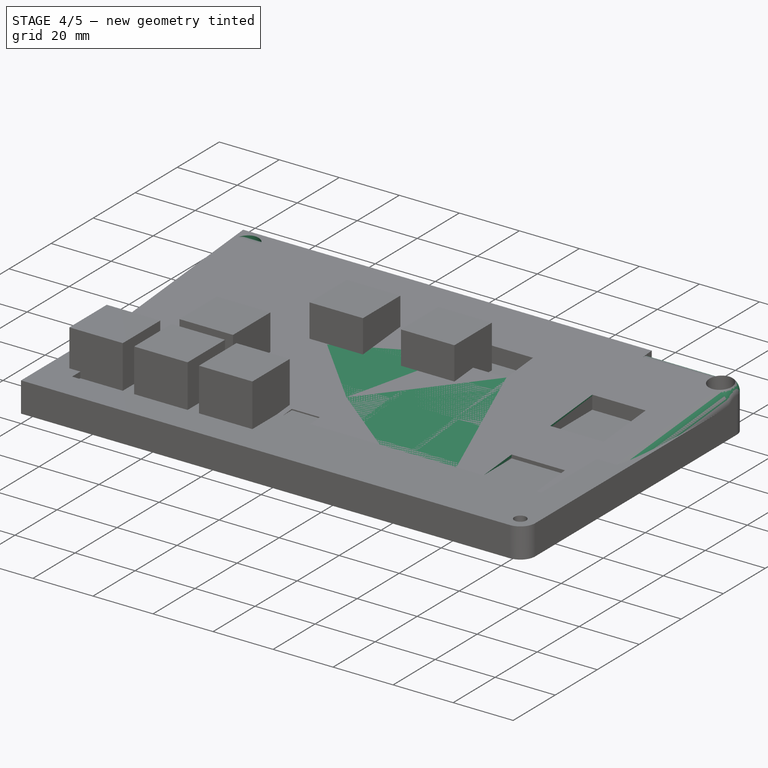
[diagram: stage 4 of 5 — iso view after this stage's code; geometry added in this stage tinted green]
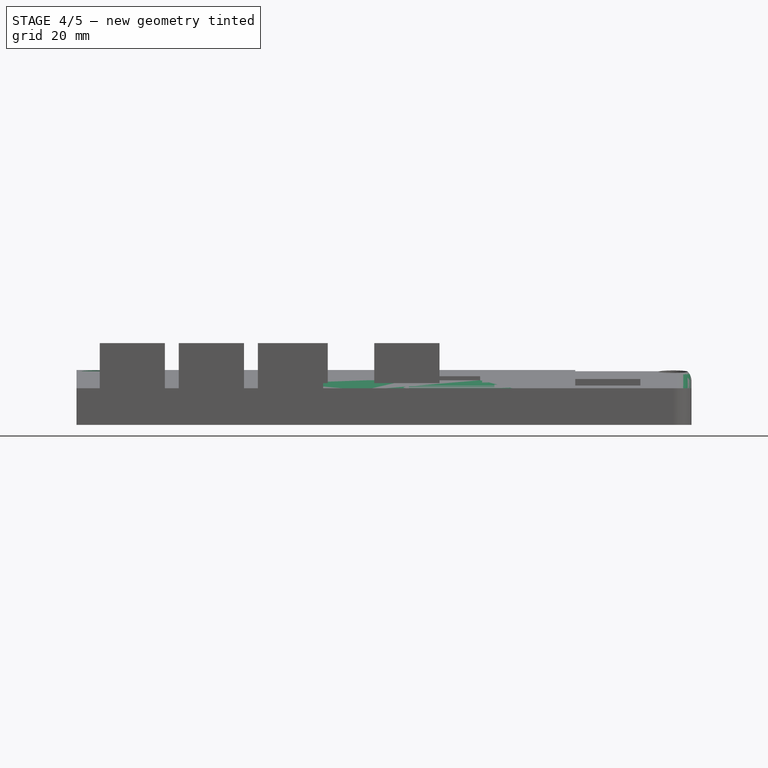
[diagram: stage 4 of 5 — front view after this stage's code; geometry added in this stage tinted green]
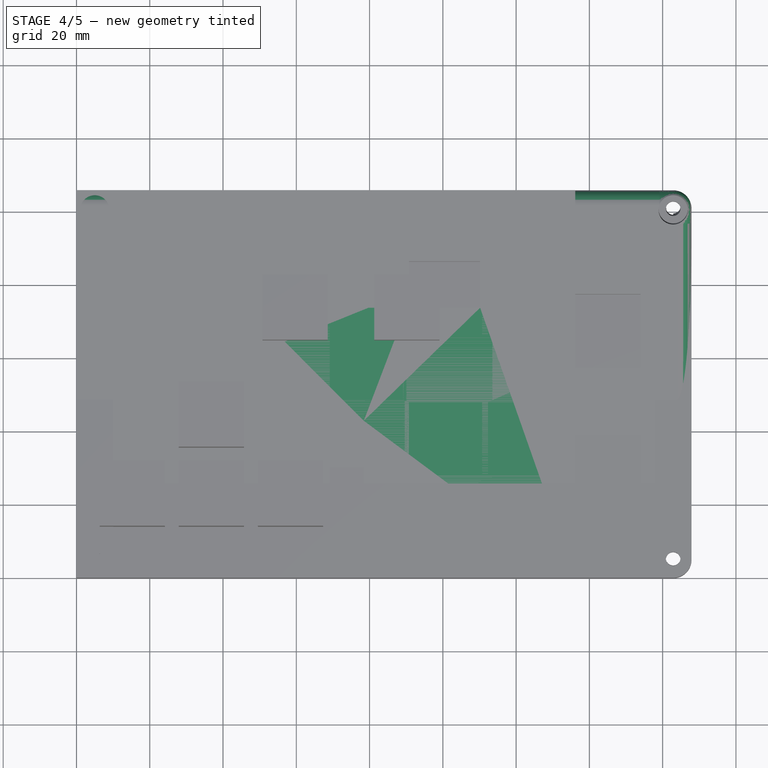
[diagram: stage 4 of 5 — top view after this stage's code; geometry added in this stage tinted green]
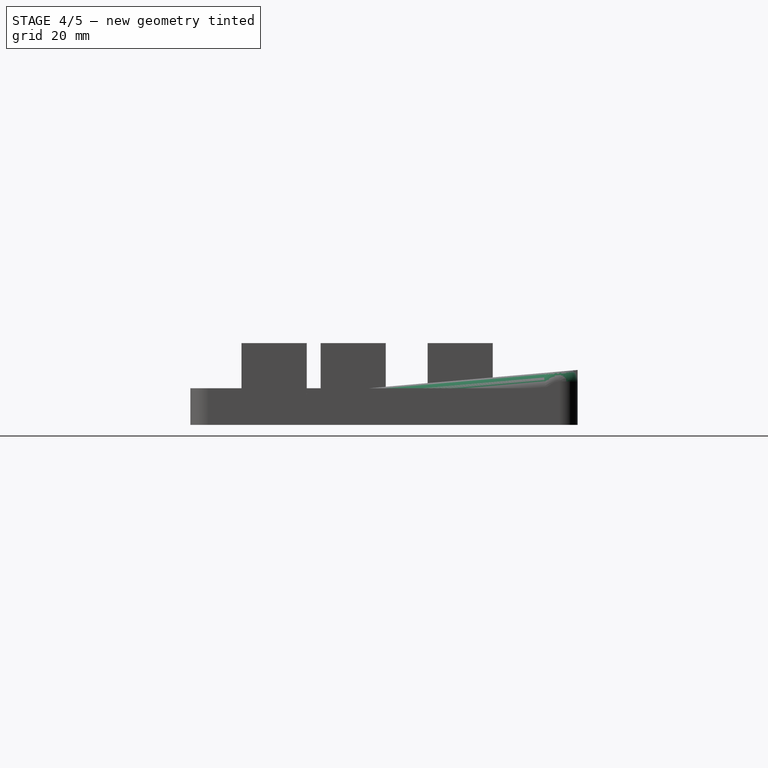
[diagram: stage 4 of 5 — right view after this stage's code; geometry added in this stage tinted green]
FEATURE [Sketcher::SketchObject] Sketch011  label="Left Enc Top Sk"
  FullyConstrained = true
  MapMode = 5
  Support = -> [XY_Plane004]
  expr: Constraints[9] = <<Params>>.enc_thick + <<Params>>.board_left_width + <<Params>>.middle_dist / 2
  expr: Constraints[10] = 2 * <<Params>>.enc_thick + <<Params>>.board_height
  sketch-geometry (4):
    g0: LineSegment StartX=0 StartY=0 StartZ=0 EndX=136.125 EndY=0 EndZ=0
    g1: LineSegment StartX=136.125 StartY=0 StartZ=0 EndX=136.125 EndY=105.725 EndZ=0
    g2: LineSegment StartX=136.125 StartY=105.725 StartZ=0 EndX=0 EndY=105.725 EndZ=0
    g3: LineSegment StartX=0 StartY=105.725 StartZ=0 EndX=0 EndY=0 EndZ=0
  constraints (11):
    c: Coincident(g0,g1)
    c: Coincident(g1,g2)
    c: Coincident(g2,g3)
    c: Coincident(g3,g0)
    c: Horizontal(g0)
    c: Horizontal(g2)
    c: Vertical(g1)
    c: Vertical(g3)
    c: Coincident(g0,g-1)
    c: DistanceX(g2,g2) = 136.125
    c: DistanceY(g3,g3) = 105.725
FEATURE [PartDesign::Pad] Pad007  label="Left Enc Top Pad"
  Direction = (1,1,1)
  Length = 15
  Length2 = 100
  Profile = -> Sketch011
  Type = 0
  expr: Length = <<Params>>.enc_thick * 1.5
FEATURE [Sketcher::SketchObject] Sketch012  label="Left Caps Cutout Sk"
  FullyConstrained = true
  MapMode = 5
  Placement = pos=(0,0,15) rot=(0,0,1;0rad)
  Support = -> [Pad007]
  expr: Constraints[19] = <<Params>>.cutout_thick
  expr: Constraints[38] = <<Params>>.cutout_thick
  expr: Constraints[64] = <<Params>>.cutout_thick
  expr: Constraints[39] = <<Params>>.cutout_thick
  expr: Constraints[40] = <<Params>>.cap_arrow_center_dist - 2 * <<Params>>.cutout_thick / 2
  expr: Constraints[65] = <<Params>>.cutout_thick
  expr: Constraints[42] = <<Params>>.cutout_thick
  expr: Constraints[9] = Spreadsheet.cutout_thick
  expr: Constraints[70] = <<Params>>.cap_arr_sel_y_dist - <<Params>>.cutout_thick
  expr: Constraints[41] = <<Params>>.cutout_thick
  expr: Constraints[8] = Spreadsheet.cutout_thick
  expr: Constraints[18] = <<Params>>.cutout_thick
  expr: Constraints[43] = <<Params>>.cap_arrow_center_dist - 2 * <<Params>>.cutout_thick / 2
  expr: Constraints[46] = <<Params>>.cap_btm_to_arr_ctr_x - <<Params>>.cutout_thick / 2 + <<Params>>.enc_thick
  expr: Constraints[67] = <<Params>>.cutout_thick
  expr: Constraints[47] = <<Params>>.cap_btm_to_arr_ctr_y - <<Params>>.cutout_thick / 2 + <<Params>>.enc_thick
  expr: Constraints[66] = <<Params>>.cutout_thick
  expr: Constraints[20] = <<Params>>.cap_arrow_center_dist - 2 * <<Params>>.cutout_thick / 2
  expr: Constraints[69] = <<Params>>.cap_arr_sel_x_dist - <<Params>>.cutout_thick
  expr: Constraints[71] = <<Params>>.cap_sel_start_ctr_dist - <<Params>>.cutout_thick
  sketch-geometry (24):
    g0: LineSegment StartX=15.24 StartY=22.86 StartZ=0 EndX=35.24 EndY=22.86 EndZ=0
    g1: LineSegment StartX=35.24 StartY=22.86 StartZ=0 EndX=35.24 EndY=42.86 EndZ=0
    g2: LineSegment StartX=35.24 StartY=42.86 StartZ=0 EndX=15.24 EndY=42.86 EndZ=0
    g3: LineSegment StartX=15.24 StartY=42.86 StartZ=0 EndX=15.24 EndY=22.86 EndZ=0
    g4: LineSegment StartX=36.83 StartY=42.86 StartZ=0 EndX=56.83 EndY=42.86 EndZ=0
    g5: LineSegment StartX=56.83 StartY=42.86 StartZ=0 EndX=56.83 EndY=22.86 EndZ=0
    g6: LineSegment StartX=56.83 StartY=22.86 StartZ=0 EndX=36.83 EndY=22.86 EndZ=0
    g7: LineSegment StartX=36.83 StartY=22.86 StartZ=0 EndX=36.83 EndY=42.86 EndZ=0
    g8: LineSegment StartX=36.83 StartY=64.45 StartZ=0 EndX=56.83 EndY=64.45 EndZ=0
    g9: LineSegment StartX=56.83 StartY=64.45 StartZ=0 EndX=56.83 EndY=44.45 EndZ=0
    g10: LineSegment StartX=56.83 StartY=44.45 StartZ=0 EndX=36.83 EndY=44.45 EndZ=0
    g11: LineSegment StartX=36.83 StartY=44.45 StartZ=0 EndX=36.83 EndY=64.45 EndZ=0
    g12: LineSegment StartX=58.42 StartY=42.86 StartZ=0 EndX=78.42 EndY=42.86 EndZ=0
    g13: LineSegment StartX=78.42 StartY=42.86 StartZ=0 EndX=78.42 EndY=22.86 EndZ=0
    g14: LineSegment StartX=78.42 StartY=22.86 StartZ=0 EndX=58.42 EndY=22.86 EndZ=0
    g15: LineSegment StartX=58.42 StartY=22.86 StartZ=0 EndX=58.42 EndY=42.86 EndZ=0
    g16: LineSegment StartX=59.69 StartY=93.66 StartZ=0 EndX=79.69 EndY=93.66 EndZ=0
    g17: LineSegment StartX=79.69 StartY=93.66 StartZ=0 EndX=79.69 EndY=73.66 EndZ=0
    g18: LineSegment StartX=79.69 StartY=73.66 StartZ=0 EndX=59.69 EndY=73.66 EndZ=0
    g19: LineSegment StartX=59.69 StartY=73.66 StartZ=0 EndX=59.69 EndY=93.66 EndZ=0
    g20: LineSegment StartX=90.17 StartY=93.66 StartZ=0 EndX=110.17 EndY=93.66 EndZ=0
    g21: LineSegment StartX=110.17 StartY=93.66 StartZ=0 EndX=110.17 EndY=73.66 EndZ=0
    g22: LineSegment StartX=110.17 StartY=73.66 StartZ=0 EndX=90.17 EndY=73.66 EndZ=0
    g23: LineSegment StartX=90.17 StartY=73.66 StartZ=0 EndX=90.17 EndY=93.66 EndZ=0
  constraints (72):
    c: Coincident(g0,g1)
    c: Coincident(g1,g2)
    c: Coincident(g2,g3)
    c: Coincident(g3,g0)
    c: Horizontal(g0)
    c: Horizontal(g2)
    c: Vertical(g1)
    c: Vertical(g3)
    c: DistanceX(g2,g2) = 20
    c: DistanceY(g1,g1) = 20
    c: Coincident(g4,g5)
    c: Coincident(g5,g6)
    c: Coincident(g6,g7)
    c: Coincident(g7,g4)
    c: Horizontal(g4)
    c: Horizontal(g6)
    c: Vertical(g5)
    c: Vertical(g7)
    c: DistanceX(g4,g4) = 20
    c: DistanceY(g5,g5) = 20
    c: DistanceX(g1,g4) = 1.59
    c: Coincident(g8,g9)
    c: Coincident(g9,g10)
    c: Coincident(g10,g11)
    c: Coincident(g11,g8)
    c: Horizontal(g8)
    c: Horizontal(g10)
    c: Vertical(g9)
    c: Vertical(g11)
    c: Coincident(g12,g13)
    c: Coincident(g13,g14)
    c: Coincident(g14,g15)
    c: Coincident(g15,g12)
    c: Horizontal(g12)
    c: Horizontal(g14)
    c: Vertical(g13)
    c: Vertical(g15)
    c: DistanceY(g0,g6) = 0
    c: DistanceX(g12,g12) = 20
    c: DistanceY(g13,g13) = 20
    c: DistanceX(g4,g12) = 1.59
    c: DistanceX(g8,g8) = 20
    c: DistanceY(g9,g9) = 20
    c: DistanceY(g4,g10) = 1.59
    c: DistanceX(g9,g4) = 0
    c: DistanceY(g14,g5) = 0
    c: DistanceX(g-1,g0) = 15.24
    c: DistanceY(g-1,g0) = 22.86
    c: Coincident(g16,g17)
    c: Coincident(g17,g18)
    c: Coincident(g18,g19)
    c: Coincident(g19,g16)
    c: Horizontal(g16)
    c: Horizontal(g18)
    c: Vertical(g17)
    c: Vertical(g19)
    c: Coincident(g20,g21)
    c: Coincident(g21,g22)
    c: Coincident(g22,g23)
    c: Coincident(g23,g20)
    c: Horizontal(g20)
    c: Horizontal(g22)
    c: Vertical(g21)
    c: Vertical(g23)
    c: DistanceX(g16,g16) = 20
    c: DistanceX(g20,g20) = 20
    c: DistanceY(g19,g19) = 20
    c: DistanceY(g23,g23) = 20
    c: DistanceY(g22,g17) = 0
    c: DistanceX(g8,g18) = 2.86
    c: DistanceY(g8,g18) = 9.21
    c: DistanceX(g16,g20) = 10.48
FEATURE [PartDesign::Pocket] Pocket004  label="Left Caps Cutout Hole"
  BaseFeature = -> Pad007
  Length = 15
  Length2 = 100
  Profile = -> Sketch012
  Type = 0
  expr: Length = <<Params>>.enc_thick * 1.5
FEATURE [Sketcher::SketchObject] Sketch013  label="Inner Cutout Sk"
  FullyConstrained = true
  MapMode = 5
  Placement = pos=(0,0,0) rot=(1,0,0;3.14159rad)
  Support = -> [Pocket004]
  expr: Constraints[8] = <<Params>>.enc_thick / 2
  expr: Constraints[9] = <<Params>>.enc_thick / 2
  expr: Constraints[10] = <<Params>>.board_height + <<Params>>.enc_thick
  expr: Constraints[11] = <<Params>>.middle_dist / 2 + <<Params>>.board_left_width + <<Params>>.enc_thick - <<Params>>.enc_thick / 2
  sketch-geometry (4):
    g0: LineSegment StartX=5 StartY=-5 StartZ=0 EndX=136.125 EndY=-5 EndZ=0
    g1: LineSegment StartX=136.125 StartY=-5 StartZ=0 EndX=136.125 EndY=-100.725 EndZ=0
    g2: LineSegment StartX=136.125 StartY=-100.725 StartZ=0 EndX=5 EndY=-100.725 EndZ=0
    g3: LineSegment StartX=5 StartY=-100.725 StartZ=0 EndX=5 EndY=-5 EndZ=0
  constraints (12):
    c: Coincident(g0,g1)
    c: Coincident(g1,g2)
    c: Coincident(g2,g3)
    c: Coincident(g3,g0)
    c: Horizontal(g0)
    c: Horizontal(g2)
    c: Vertical(g1)
    c: Vertical(g3)
    c: DistanceX(g-1,g0) = 5
    c: DistanceY(g0,g-1) = 5
    c: DistanceY(g3,g3) = 95.725
    c: DistanceX(g0,g0) = 131.125
FEATURE [PartDesign::Pocket] Pocket005  label="Inner Cutout"
  BaseFeature = -> Pocket004
  Length = 5
  Length2 = 100
  Profile = -> Sketch013
  Type = 0
  expr: Length = <<Params>>.enc_thick / 2
FEATURE [Sketcher::SketchObject] Sketch014  label="Slant Cut Sk"
  FullyConstrained = true
  MapMode = 5
  Placement = pos=(0,0,0) rot=(0.57735,-0.57735,-0.57735;2.0944rad)
  Support = -> [Pocket005]
  expr: Constraints[1] = <<Params>>.board_height + <<Params>>.enc_thick * 2
  expr: Constraints[8] = <<Params>>.slope_angle
  sketch-geometry (3):
    g0: LineSegment StartX=-105.725 StartY=15 StartZ=0 EndX=0 EndY=5.75026 EndZ=0
    g1: LineSegment StartX=-105.725 StartY=15 StartZ=0 EndX=0 EndY=15 EndZ=0
    g2: LineSegment StartX=0 StartY=15 StartZ=0 EndX=0 EndY=5.75026 EndZ=0
  constraints (9):
    c: DistanceY(g-1,g0) = 15
    c: DistanceX(g0,g-1) = 105.725
    c: Coincident(g1,g0)
    c: PointOnObject(g1,g-2)
    c: Horizontal(g1)
    c: Coincident(g2,g1)
    c: Coincident(g2,g0)
    c: Vertical(g2)
    c: Angle(g0,g1) = 0.0872665
FEATURE [PartDesign::Pocket] Pocket006  label="Slant Cut"
  BaseFeature = -> Pocket005
  Length = 136.125
  Length2 = 100
  Profile = -> Sketch014
  Type = 0
  expr: Length = <<Params>>.board_left_width + <<Params>>.enc_thick + <<Params>>.middle_dist / 2
FEATURE [PartDesign::Pocket] Pocket017  label="Left Enc Top Cutout"
  BaseFeature = -> Pocket006
  Length = 5
  Length2 = 100
  Profile = -> Sketch016
  Type = 0
  expr: Length = <<Params>>.enc_thick * 0.5
FEATURE [PartDesign::Fillet] Fillet018
  Base = -> Pocket021 [Edge2,Edge16]
  BaseFeature = -> Pocket021
  Radius = 5
  SupportTransform = false
FEATURE [PartDesign::Fillet] Fillet019
  Base = -> Fillet018 [Edge28]
  BaseFeature = -> Fillet018
  Radius = 4
  SupportTransform = false
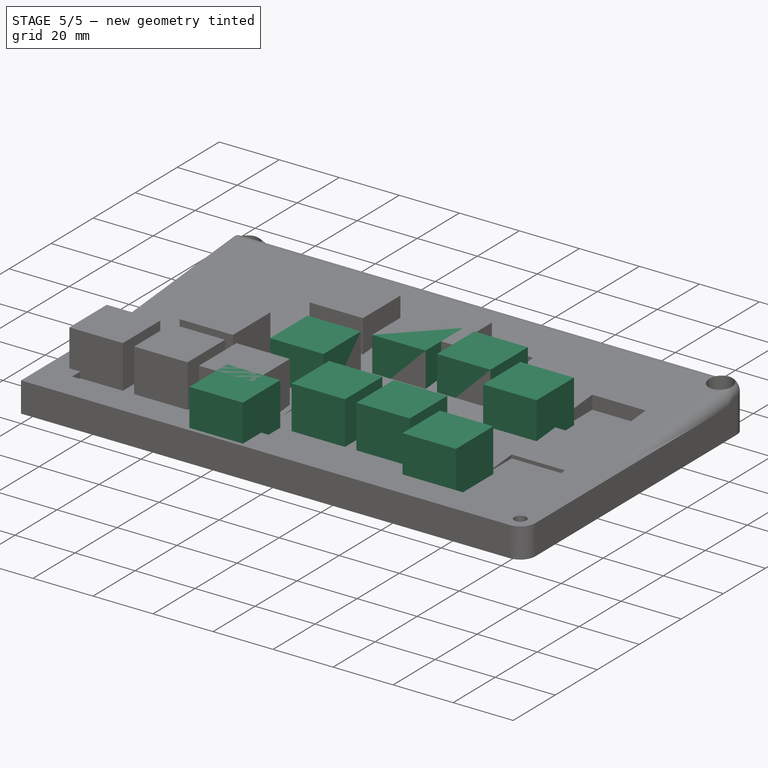
[diagram: stage 5 of 5 — iso view after this stage's code; geometry added in this stage tinted green]
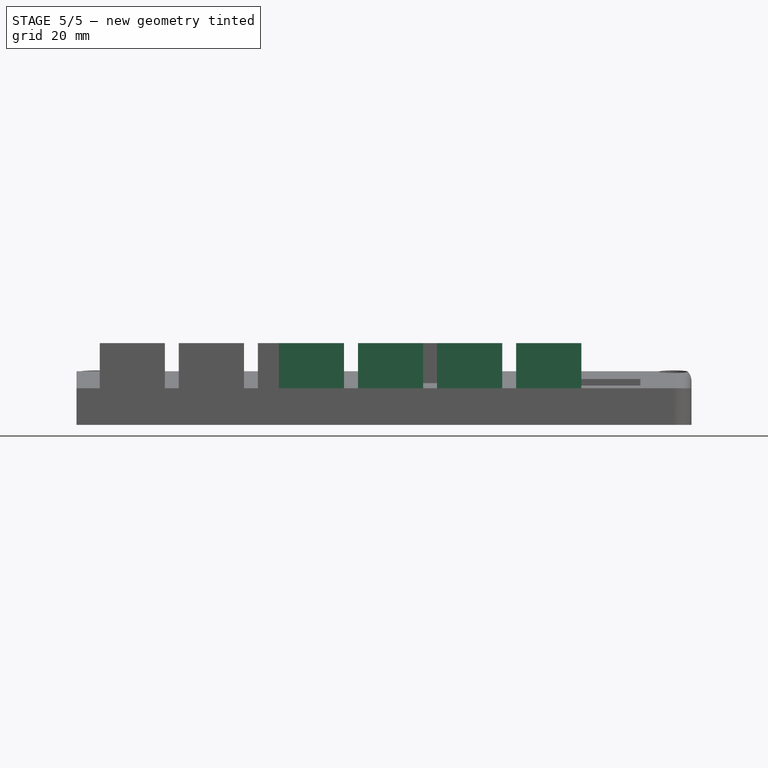
[diagram: stage 5 of 5 — front view after this stage's code; geometry added in this stage tinted green]
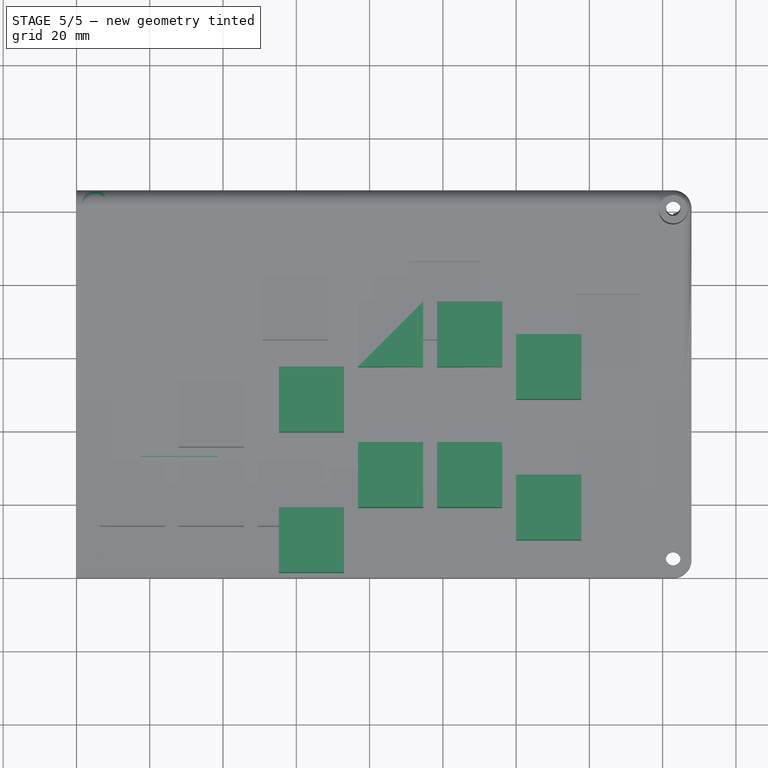
[diagram: stage 5 of 5 — top view after this stage's code; geometry added in this stage tinted green]
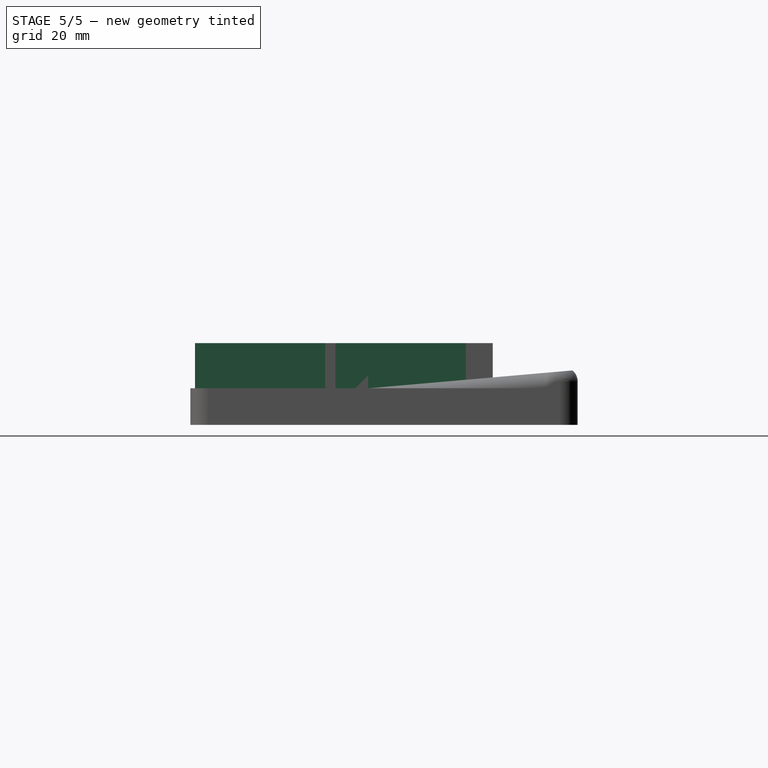
[diagram: stage 5 of 5 — right view after this stage's code; geometry added in this stage tinted green]
FEATURE [Sketcher::SketchObject] Sketch  label="Left Caps Sk"
  FullyConstrained = true
  MapMode = 5
  Placement = pos=(0,0,4.66) rot=(0,0,1;0rad)
  Support = -> [Pad]
  expr: Constraints[71] = <<Params>>.cap_sel_start_ctr_dist - <<Params>>.cap_width
  expr: Constraints[69] = <<Params>>.cap_arr_sel_x_dist - <<Params>>.cap_width
  expr: Constraints[20] = <<Params>>.cap_arrow_center_dist - 2 * <<Params>>.cap_width / 2
  expr: Constraints[66] = <<Params>>.cap_height
  expr: Constraints[47] = <<Params>>.cap_btm_to_arr_ctr_y - <<Params>>.cap_height / 2
  expr: Constraints[67] = <<Params>>.cap_height
  expr: Constraints[46] = <<Params>>.cap_btm_to_arr_ctr_x - <<Params>>.cap_width / 2
  expr: Constraints[43] = <<Params>>.cap_arrow_center_dist - 2 * <<Params>>.cap_width / 2
  expr: Constraints[18] = <<Params>>.cap_width
  expr: Constraints[8] = Spreadsheet.cap_width
  expr: Constraints[41] = <<Params>>.cap_width
  expr: Constraints[70] = <<Params>>.cap_arr_sel_y_dist - <<Params>>.cap_height
  expr: Constraints[9] = Spreadsheet.cap_height
  expr: Constraints[42] = <<Params>>.cap_height
  expr: Constraints[65] = <<Params>>.cap_width
  expr: Constraints[40] = <<Params>>.cap_arrow_center_dist - 2 * <<Params>>.cap_width / 2
  expr: Constraints[39] = <<Params>>.cap_height
  expr: Constraints[64] = <<Params>>.cap_width
  expr: Constraints[38] = <<Params>>.cap_width
  expr: Constraints[19] = <<Params>>.cap_height
  sketch-geometry (24):
    g0: LineSegment StartX=6.34 StartY=13.96 StartZ=0 EndX=24.14 EndY=13.96 EndZ=0
    g1: LineSegment StartX=24.14 StartY=13.96 StartZ=0 EndX=24.14 EndY=31.76 EndZ=0
    g2: LineSegment StartX=24.14 StartY=31.76 StartZ=0 EndX=6.34 EndY=31.76 EndZ=0
    g3: LineSegment StartX=6.34 StartY=31.76 StartZ=0 EndX=6.34 EndY=13.96 EndZ=0
    g4: LineSegment StartX=27.93 StartY=31.76 StartZ=0 EndX=45.73 EndY=31.76 EndZ=0
    g5: LineSegment StartX=45.73 StartY=31.76 StartZ=0 EndX=45.73 EndY=13.96 EndZ=0
    g6: LineSegment StartX=45.73 StartY=13.96 StartZ=0 EndX=27.93 EndY=13.96 EndZ=0
    g7: LineSegment StartX=27.93 StartY=13.96 StartZ=0 EndX=27.93 EndY=31.76 EndZ=0
    g8: LineSegment StartX=27.93 StartY=53.35 StartZ=0 EndX=45.73 EndY=53.35 EndZ=0
    g9: LineSegment StartX=45.73 StartY=53.35 StartZ=0 EndX=45.73 EndY=35.55 EndZ=0
    g10: LineSegment StartX=45.73 StartY=35.55 StartZ=0 EndX=27.93 EndY=35.55 EndZ=0
    g11: LineSegment StartX=27.93 StartY=35.55 StartZ=0 EndX=27.93 EndY=53.35 EndZ=0
    g12: LineSegment StartX=49.52 StartY=31.76 StartZ=0 EndX=67.32 EndY=31.76 EndZ=0
    g13: LineSegment StartX=67.32 StartY=31.76 StartZ=0 EndX=67.32 EndY=13.96 EndZ=0
    g14: LineSegment StartX=67.32 StartY=13.96 StartZ=0 EndX=49.52 EndY=13.96 EndZ=0
    g15: LineSegment StartX=49.52 StartY=13.96 StartZ=0 EndX=49.52 EndY=31.76 EndZ=0
    g16: LineSegment StartX=50.79 StartY=82.56 StartZ=0 EndX=68.59 EndY=82.56 EndZ=0
    g17: LineSegment StartX=68.59 StartY=82.56 StartZ=0 EndX=68.59 EndY=64.76 EndZ=0
    g18: LineSegment StartX=68.59 StartY=64.76 StartZ=0 EndX=50.79 EndY=64.76 EndZ=0
    g19: LineSegment StartX=50.79 StartY=64.76 StartZ=0 EndX=50.79 EndY=82.56 EndZ=0
    g20: LineSegment StartX=81.27 StartY=82.56 StartZ=0 EndX=99.07 EndY=82.56 EndZ=0
    g21: LineSegment StartX=99.07 StartY=82.56 StartZ=0 EndX=99.07 EndY=64.76 EndZ=0
    g22: LineSegment StartX=99.07 StartY=64.76 StartZ=0 EndX=81.27 EndY=64.76 EndZ=0
    g23: LineSegment StartX=81.27 StartY=64.76 StartZ=0 EndX=81.27 EndY=82.56 EndZ=0
  constraints (72):
    c: Coincident(g0,g1)
    c: Coincident(g1,g2)
    c: Coincident(g2,g3)
    c: Coincident(g3,g0)
    c: Horizontal(g0)
    c: Horizontal(g2)
    c: Vertical(g1)
    c: Vertical(g3)
    c: DistanceX(g2,g2) = 17.8
    c: DistanceY(g1,g1) = 17.8
    c: Coincident(g4,g5)
    c: Coincident(g5,g6)
    c: Coincident(g6,g7)
    c: Coincident(g7,g4)
    c: Horizontal(g4)
    c: Horizontal(g6)
    c: Vertical(g5)
    c: Vertical(g7)
    c: DistanceX(g4,g4) = 17.8
    c: DistanceY(g5,g5) = 17.8
    c: DistanceX(g1,g4) = 3.79
    c: Coincident(g8,g9)
    c: Coincident(g9,g10)
    c: Coincident(g10,g11)
    c: Coincident(g11,g8)
    c: Horizontal(g8)
    c: Horizontal(g10)
    c: Vertical(g9)
    c: Vertical(g11)
    c: Coincident(g12,g13)
    c: Coincident(g13,g14)
    c: Coincident(g14,g15)
    c: Coincident(g15,g12)
    c: Horizontal(g12)
    c: Horizontal(g14)
    c: Vertical(g13)
    c: Vertical(g15)
    c: DistanceY(g0,g6) = 0
    c: DistanceX(g12,g12) = 17.8
    c: DistanceY(g13,g13) = 17.8
    c: DistanceX(g4,g12) = 3.79
    c: DistanceX(g8,g8) = 17.8
    c: DistanceY(g9,g9) = 17.8
    c: DistanceY(g4,g10) = 3.79
    c: DistanceX(g9,g4) = 0
    c: DistanceY(g14,g5) = 0
    c: DistanceX(g-1,g0) = 6.34
    c: DistanceY(g-1,g0) = 13.96
    c: Coincident(g16,g17)
    c: Coincident(g17,g18)
    c: Coincident(g18,g19)
    c: Coincident(g19,g16)
    c: Horizontal(g16)
    c: Horizontal(g18)
    c: Vertical(g17)
    c: Vertical(g19)
    c: Coincident(g20,g21)
    c: Coincident(g21,g22)
    c: Coincident(g22,g23)
    c: Coincident(g23,g20)
    c: Horizontal(g20)
    c: Horizontal(g22)
    c: Vertical(g21)
    c: Vertical(g23)
    c: DistanceX(g16,g16) = 17.8
    c: DistanceX(g20,g20) = 17.8
    c: DistanceY(g19,g19) = 17.8
    c: DistanceY(g23,g23) = 17.8
    c: DistanceY(g22,g17) = 0
    c: DistanceX(g8,g18) = 5.06
    c: DistanceY(g8,g18) = 11.41
    c: DistanceX(g16,g20) = 12.68
FEATURE [Sketcher::SketchObject] Sketch002  label="Right Board Sk"
  FullyConstrained = true
  MapMode = 5
  Support = -> [XY_Plane001]
  expr: Constraints[10] = <<Params>>.board_right_width
  expr: Constraints[9] = <<Params>>.board_height
  sketch-geometry (4):
    g0: LineSegment StartX=0 StartY=0 StartZ=0 EndX=142.875 EndY=0 EndZ=0
    g1: LineSegment StartX=142.875 StartY=0 StartZ=0 EndX=142.875 EndY=85.725 EndZ=0
    g2: LineSegment StartX=142.875 StartY=85.725 StartZ=0 EndX=0 EndY=85.725 EndZ=0
    g3: LineSegment StartX=0 StartY=85.725 StartZ=0 EndX=0 EndY=0 EndZ=0
  constraints (11):
    c: Coincident(g0,g1)
    c: Coincident(g1,g2)
    c: Coincident(g2,g3)
    c: Coincident(g3,g0)
    c: Horizontal(g0)
    c: Horizontal(g2)
    c: Vertical(g1)
    c: Vertical(g3)
    c: Coincident(g0,g-1)
    c: DistanceY(g1,g1) = 85.725
    c: DistanceX(g2,g2) = 142.875
FEATURE [PartDesign::Pad] Pad002  label="Right Board Thickness"
  Direction = (1,1,1)
  Length = 4.66
  Length2 = 100
  Profile = -> Sketch002
  Type = 0
  expr: Length = <<Params>>.board_depth
FEATURE [Sketcher::SketchObject] Sketch005  label="Right Caps Sk"
  FullyConstrained = true
  MapMode = 5
  Placement = pos=(0,0,4.66) rot=(0,0,1;0rad)
  Support = -> [Pad002]
  expr: Constraints[94] = <<Params>>.cap_light_ctr_x - <<Params>>.cap_width
  expr: Constraints[73] = <<Params>>.cap_height
  expr: Constraints[88] = <<Params>>.cap_kick_punch_dist - <<Params>>.cap_height
  expr: Constraints[80] = <<Params>>.cap_btm_kick_ctr_y - <<Params>>.cap_height / 2
  expr: Constraints[79] = <<Params>>.cap_height
  expr: Constraints[93] = <<Params>>.cap_light_end_y - <<Params>>.cap_height
  expr: Constraints[78] = <<Params>>.cap_height
  expr: Constraints[83] = <<Params>>.cap_kick_punch_dist - <<Params>>.cap_height
  expr: Constraints[76] = <<Params>>.cap_height
  expr: Constraints[95] = <<Params>>.cap_light_ctr_x - <<Params>>.cap_width
  expr: Constraints[74] = <<Params>>.cap_height
  expr: Constraints[77] = <<Params>>.cap_height
  expr: Constraints[72] = <<Params>>.cap_height
  expr: Constraints[91] = <<Params>>.cap_light_ctr_y - <<Params>>.cap_height
  expr: Constraints[92] = <<Params>>.cap_kick_punch_dist - <<Params>>.cap_height
  expr: Constraints[75] = <<Params>>.cap_height
  expr: Constraints[70] = <<Params>>.cap_width
  expr: Constraints[87] = <<Params>>.cap_light_ctr_x - <<Params>>.cap_width
  expr: Constraints[69] = <<Params>>.cap_width
  expr: Constraints[71] = <<Params>>.cap_width
  expr: Constraints[82] = <<Params>>.cap_btm_kick_ctr_x - <<Params>>.cap_width / 2
  expr: Constraints[68] = <<Params>>.cap_width
  expr: Constraints[67] = <<Params>>.cap_width
  expr: Constraints[66] = <<Params>>.cap_width
  expr: Constraints[65] = <<Params>>.cap_width
  expr: Constraints[64] = <<Params>>.cap_width
  sketch-geometry (32):
    g0: LineSegment StartX=55.235 StartY=19.06 StartZ=0 EndX=73.035 EndY=19.06 EndZ=0
    g1: LineSegment StartX=73.035 StartY=19.06 StartZ=0 EndX=73.035 EndY=1.26 EndZ=0
    g2: LineSegment StartX=73.035 StartY=1.26 StartZ=0 EndX=55.235 EndY=1.26 EndZ=0
    g3: LineSegment StartX=55.235 StartY=1.26 StartZ=0 EndX=55.235 EndY=19.06 EndZ=0
    g4: LineSegment StartX=76.825 StartY=36.84 StartZ=0 EndX=94.625 EndY=36.84 EndZ=0
    g5: LineSegment StartX=94.625 StartY=36.84 StartZ=0 EndX=94.625 EndY=19.04 EndZ=0
    g6: LineSegment StartX=94.625 StartY=19.04 StartZ=0 EndX=76.825 EndY=19.04 EndZ=0
    g7: LineSegment StartX=76.825 StartY=19.04 StartZ=0 EndX=76.825 EndY=36.84 EndZ=0
    g8: LineSegment StartX=98.415 StartY=36.84 StartZ=0 EndX=116.215 EndY=36.84 EndZ=0
    g9: LineSegment StartX=116.215 StartY=36.84 StartZ=0 EndX=116.215 EndY=19.04 EndZ=0
    g10: LineSegment StartX=116.215 StartY=19.04 StartZ=0 EndX=98.415 EndY=19.04 EndZ=0
    g11: LineSegment StartX=98.415 StartY=19.04 StartZ=0 EndX=98.415 EndY=36.84 EndZ=0
    g12: LineSegment StartX=120.005 StartY=27.95 StartZ=0 EndX=137.805 EndY=27.95 EndZ=0
    g13: LineSegment StartX=137.805 StartY=27.95 StartZ=0 EndX=137.805 EndY=10.15 EndZ=0
    g14: LineSegment StartX=137.805 StartY=10.15 StartZ=0 EndX=120.005 EndY=10.15 EndZ=0
    g15: LineSegment StartX=120.005 StartY=10.15 StartZ=0 EndX=120.005 EndY=27.95 EndZ=0
    g16: LineSegment StartX=120.005 StartY=66.325 StartZ=0 EndX=137.805 EndY=66.325 EndZ=0
    g17: LineSegment StartX=137.805 StartY=66.325 StartZ=0 EndX=137.805 EndY=48.525 EndZ=0
    g18: LineSegment StartX=137.805 StartY=48.525 StartZ=0 EndX=120.005 EndY=48.525 EndZ=0
    g19: LineSegment StartX=120.005 StartY=48.525 StartZ=0 EndX=120.005 EndY=66.325 EndZ=0
    g20: LineSegment StartX=98.415 StartY=75.215 StartZ=0 EndX=116.215 EndY=75.215 EndZ=0
    g21: LineSegment StartX=116.215 StartY=75.215 StartZ=0 EndX=116.215 EndY=57.415 EndZ=0
    g22: LineSegment StartX=116.215 StartY=57.415 StartZ=0 EndX=98.415 EndY=57.415 EndZ=0
    g23: LineSegment StartX=98.415 StartY=57.415 StartZ=0 EndX=98.415 EndY=75.215 EndZ=0
    g24: LineSegment StartX=76.825 StartY=75.215 StartZ=0 EndX=94.625 EndY=75.215 EndZ=0
    g25: LineSegment StartX=94.625 StartY=75.215 StartZ=0 EndX=94.625 EndY=57.415 EndZ=0
    g26: LineSegment StartX=94.625 StartY=57.415 StartZ=0 EndX=76.825 EndY=57.415 EndZ=0
    g27: LineSegment StartX=76.825 StartY=57.415 StartZ=0 EndX=76.825 EndY=75.215 EndZ=0
    g28: LineSegment StartX=55.235 StartY=57.435 StartZ=0 EndX=73.035 EndY=57.435 EndZ=0
    g29: LineSegment StartX=73.035 StartY=57.435 StartZ=0 EndX=73.035 EndY=39.635 EndZ=0
    g30: LineSegment StartX=73.035 StartY=39.635 StartZ=0 EndX=55.235 EndY=39.635 EndZ=0
    g31: LineSegment StartX=55.235 StartY=39.635 StartZ=0 EndX=55.235 EndY=57.435 EndZ=0
  constraints (96):
    c: Coincident(g0,g1)
    c: Coincident(g1,g2)
    c: Coincident(g2,g3)
    c: Coincident(g3,g0)
    c: Horizontal(g0)
    c: Horizontal(g2)
    c: Vertical(g1)
    c: Vertical(g3)
    c: Coincident(g4,g5)
    c: Coincident(g5,g6)
    c: Coincident(g6,g7)
    c: Coincident(g7,g4)
    c: Horizontal(g4)
    c: Horizontal(g6)
    c: Vertical(g5)
    c: Vertical(g7)
    c: Coincident(g8,g9)
    c: Coincident(g9,g10)
    c: Coincident(g10,g11)
    c: Coincident(g11,g8)
    c: Horizontal(g8)
    c: Horizontal(g10)
    c: Vertical(g9)
    c: Vertical(g11)
    c: Coincident(g12,g13)
    c: Coincident(g13,g14)
    c: Coincident(g14,g15)
    c: Coincident(g15,g12)
    c: Horizontal(g12)
    c: Horizontal(g14)
    c: Vertical(g13)
    c: Vertical(g15)
    c: Coincident(g16,g17)
    c: Coincident(g17,g18)
    c: Coincident(g18,g19)
    c: Coincident(g19,g16)
    c: Horizontal(g16)
    c: Horizontal(g18)
    c: Vertical(g17)
    c: Vertical(g19)
    c: Coincident(g20,g21)
    c: Coincident(g21,g22)
    c: Coincident(g22,g23)
    c: Coincident(g23,g20)
    c: Horizontal(g20)
    c: Horizontal(g22)
    c: Vertical(g21)
    c: Vertical(g23)
    c: Coincident(g24,g25)
    c: Coincident(g25,g26)
    c: Coincident(g26,g27)
    c: Coincident(g27,g24)
    c: Horizontal(g24)
    c: Horizontal(g26)
    c: Vertical(g25)
    c: Vertical(g27)
    c: Coincident(g28,g29)
    c: Coincident(g29,g30)
    c: Coincident(g30,g31)
    c: Coincident(g31,g28)
    c: Horizontal(g28)
    c: Horizontal(g30)
    c: Vertical(g29)
    c: Vertical(g31)
    c: DistanceX(g28,g28) = 17.8
    c: DistanceX(g24,g24) = 17.8
    c: DistanceX(g20,g20) = 17.8
    c: DistanceX(g16,g16) = 17.8
    c: DistanceX(g0,g0) = 17.8
    c: DistanceX(g4,g4) = 17.8
    c: DistanceX(g8,g8) = 17.8
    c: DistanceX(g12,g12) = 17.8
    c: DistanceY(g3,g3) = 17.8
    c: DistanceY(g7,g7) = 17.8
    c: DistanceY(g11,g11) = 17.8
    c: DistanceY(g15,g15) = 17.8
    c: DistanceY(g31,g31) = 17.8
    c: DistanceY(g27,g27) = 17.8
    c: DistanceY(g23,g23) = 17.8
    c: DistanceY(g19,g19) = 17.8
    c: DistanceY(g-1,g2) = 1.26
    c: DistanceX(g0,g29) = 0
    c: DistanceX(g-1,g2) = 55.235
    c: DistanceY(g0,g30) = 20.575
    c: DistanceX(g25,g4) = 0
    c: DistanceX(g21,g8) = 0
    c: DistanceX(g12,g17) = 0
    c: DistanceX(g0,g6) = 3.79
    c: DistanceY(g4,g26) = 20.575
    c: DistanceY(g10,g5) = 0
    c: DistanceY(g22,g25) = 0
    c: DistanceY(g0,g6) = -0.02
    c: DistanceY(g12,g18) = 20.575
    c: DistanceY(g12,g9) = -8.91
    c: DistanceX(g9,g12) = 3.79
    c: DistanceX(g4,g8) = 3.79
FEATURE [PartDesign::Pad] Pad005  label="Right Caps Pad"
  BaseFeature = -> Pad002
  Direction = (1,1,1)
  Length = 17.68
  Length2 = 100
  Profile = -> Sketch005
  Type = 0
  expr: Length = <<Params>>.cap_max_depth
FEATURE [Sketcher::SketchObject] Sketch006  label="Pico Sk"
  FullyConstrained = true
  MapMode = 5
  Placement = pos=(0,0,4.66) rot=(0,0,1;0rad)
  Support = -> [Pad005]
  expr: Constraints[11] = <<Params>>.pico_offset_x
  expr: Constraints[10] = <<Params>>.pico_offset_y
  expr: Constraints[9] = <<Params>>.pico_length
  expr: Constraints[8] = <<Params>>.pico_width
  sketch-geometry (4):
    g0: LineSegment StartX=17.575 StartY=85.155 StartZ=0 EndX=38.535 EndY=85.155 EndZ=0
    g1: LineSegment StartX=38.535 StartY=85.155 StartZ=0 EndX=38.535 EndY=33.055 EndZ=0
    g2: LineSegment StartX=38.535 StartY=33.055 StartZ=0 EndX=17.575 EndY=33.055 EndZ=0
    g3: LineSegment StartX=17.575 StartY=33.055 StartZ=0 EndX=17.575 EndY=85.155 EndZ=0
  constraints (12):
    c: Coincident(g0,g1)
    c: Coincident(g1,g2)
    c: Coincident(g2,g3)
    c: Coincident(g3,g0)
    c: Horizontal(g0)
    c: Horizontal(g2)
    c: Vertical(g1)
    c: Vertical(g3)
    c: DistanceX(g0,g0) = 20.96
    c: DistanceY(g1,g1) = 52.1
    c: DistanceY(g-1,g2) = 33.055
    c: DistanceX(g-1,g2) = 17.575
FEATURE [PartDesign::Pad] Pad006  label="Pico Pad"
  BaseFeature = -> Pad005
  Direction = (1,1,1)
  Length = 4
  Length2 = 100
  Profile = -> Sketch006
  Type = 0
  expr: Length = <<Params>>.pico_thick
FEATURE [Sketcher::SketchObject] Sketch015  label="Left Enc Top Hole Sk"
  FullyConstrained = true
  MapMode = 5
  Placement = pos=(0,-0.0634825,0.725608) rot=(1,0,0;0.087266rad)
  Support = -> [Pocket017]
  expr: Constraints[5] = <<Params>>.board_height + <<Params>>.enc_thick * 2 - 10
  sketch-geometry (2):
    g0: Circle CenterX=5 CenterY=5.5 CenterZ=0 NormalX=0 NormalY=0 NormalZ=1 AngleXU=0 Radius=2
    g1: Circle CenterX=5 CenterY=101.225 CenterZ=0 NormalX=0 NormalY=0 NormalZ=1 AngleXU=0 Radius=2
  constraints (6):
    c: Radius(g0) = 2
    c: DistanceX(g-1,g0) = 5
    c: Radius(g1) = 2
    c: DistanceX(g0,g1) = 0
    c: DistanceY(g-1,g0) = 5.5
    c: DistanceY(g0,g1) = 95.725
FEATURE [PartDesign::Pocket] Pocket018  label="Left Enc Top Hole"
  BaseFeature = -> Pocket017
  Length = 10
  Length2 = 100
  Profile = -> Sketch015
  Type = 0
  expr: Length = <<Params>>.enc_thick
FEATURE [PartDesign::Fillet] Fillet
  Base = -> Pocket018 [Edge48,Edge4]
  BaseFeature = -> Pocket018
  Radius = 5
  SupportTransform = false
FEATURE [PartDesign::Fillet] Fillet017
  Base = -> Fillet [Edge26]
  BaseFeature = -> Fillet
  Radius = 4
  SupportTransform = false
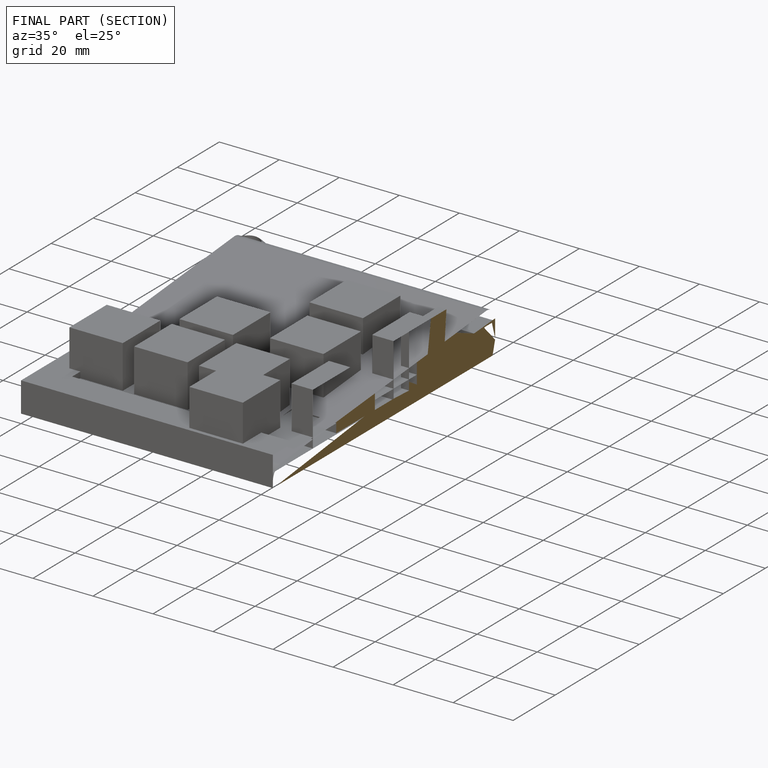
[diagram: finished part — half-section view (interior)]
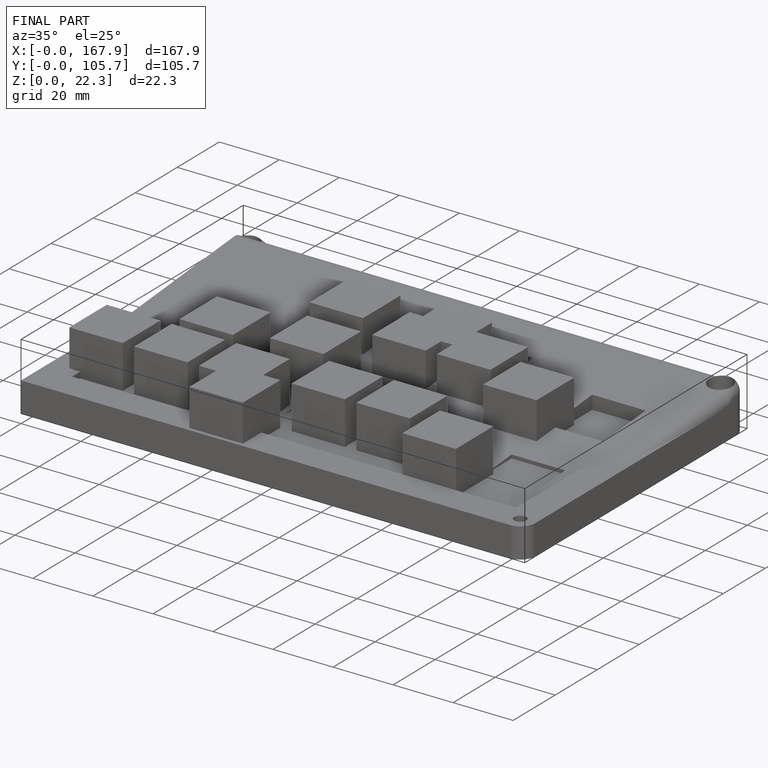
[diagram: finished part — iso view with bounding-box wireframe]
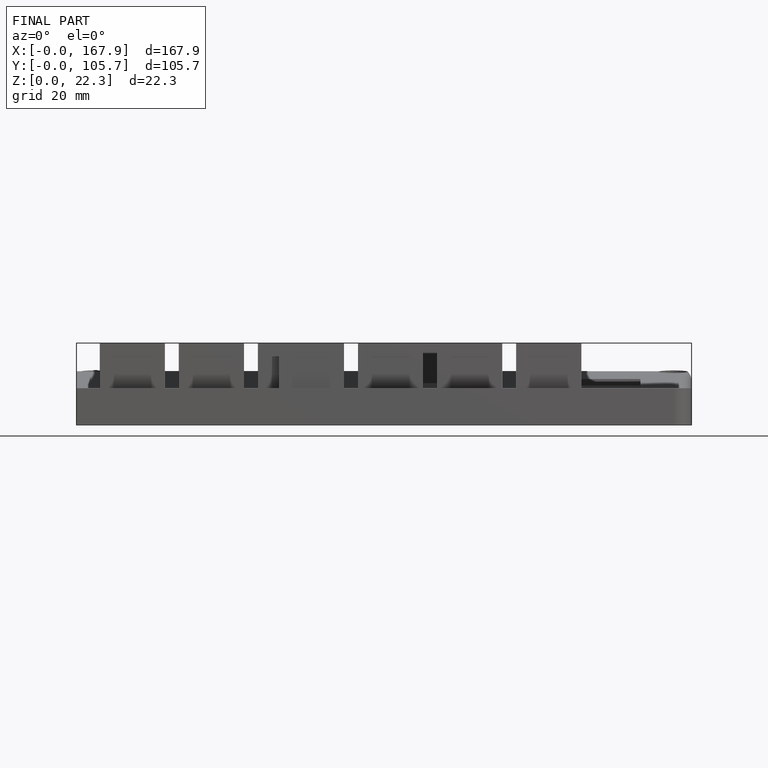
[diagram: finished part — front view with bounding-box wireframe]
